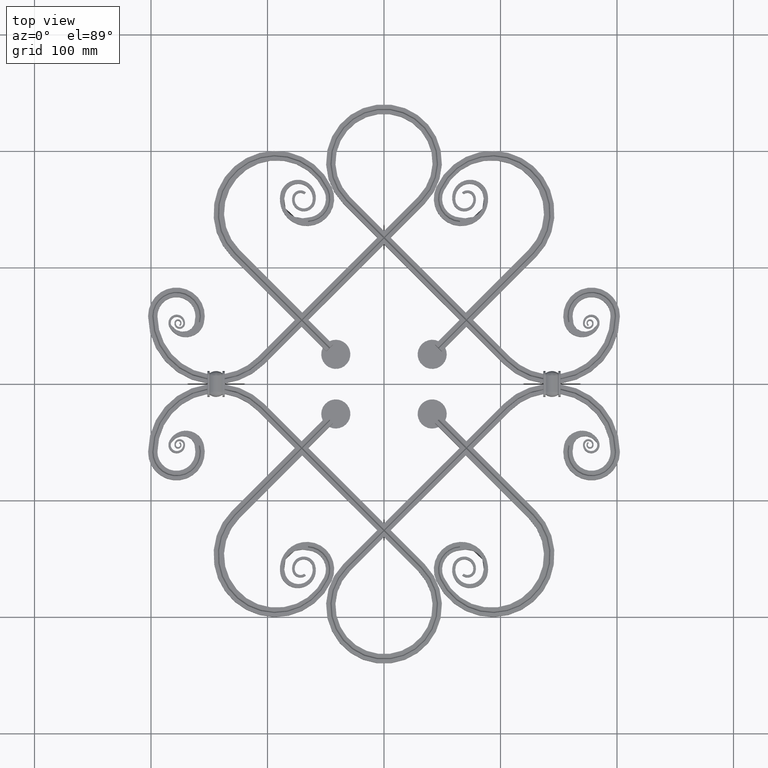
[diagram: clean part render]
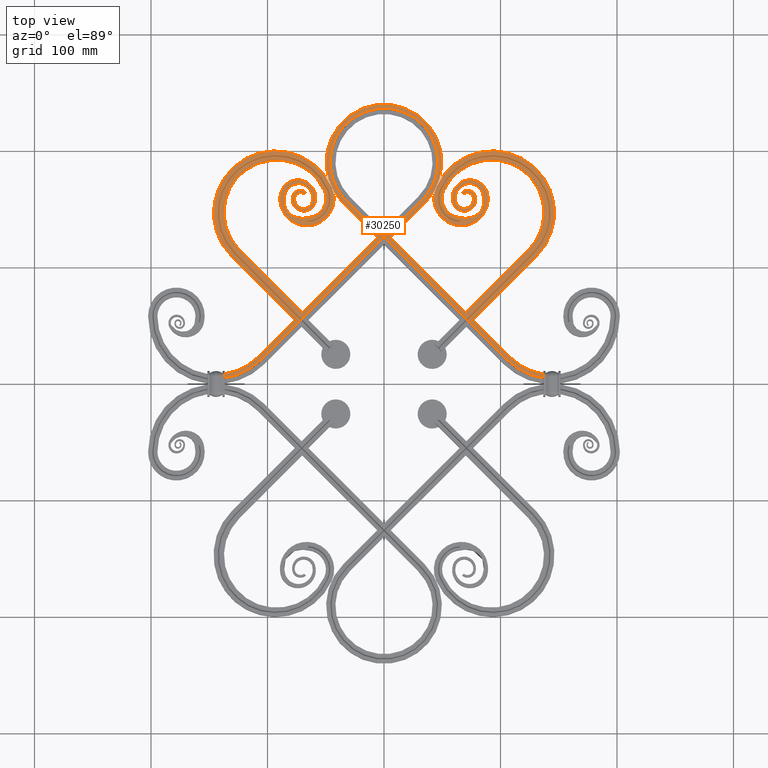
[diagram: same view with one face highlighted and labeled with its STEP entity id]
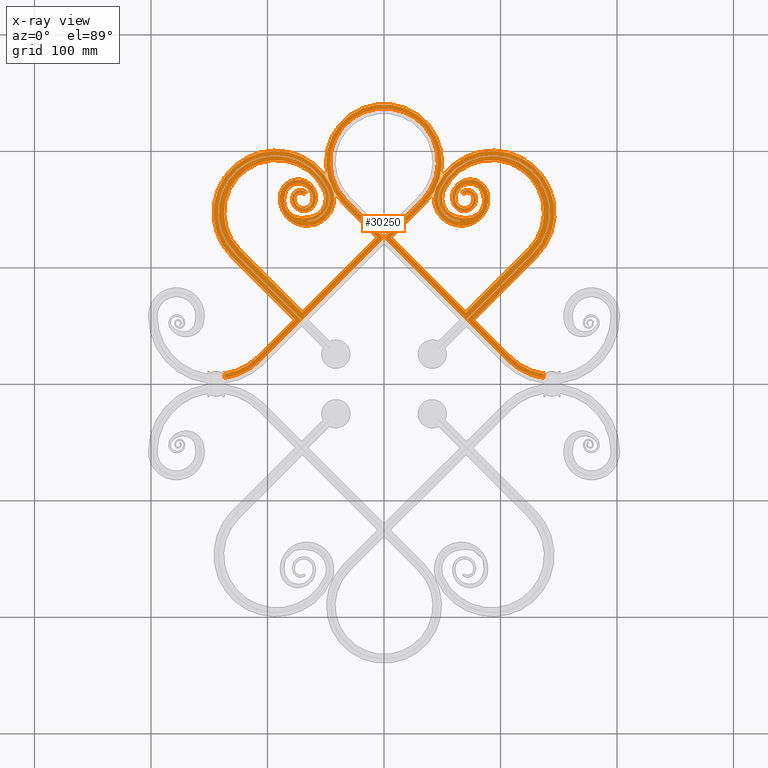
[diagram: x-ray of the same camera — body ghosted, the highlighted face saturated]
A machine part, top view. The second image highlights one B-rep face of the part: STEP entity #30250.
The next image is the same camera in x-ray: the body ghosted, the highlighted face saturated — about 0% of this face is hidden behind the body in this view.
In plain terms, the highlighted planar face has unit normal (-0, 0, -1).
Its self-contained STEP definition (entity closure, byte-faithful):
#44 = LINE ( 'NONE', #47434, #48711 ) ;
#79 = DIRECTION ( 'NONE',  ( 1.000000000000000000, 0.000000000000000000, 0.000000000000000000 ) ) ;
#291 = DIRECTION ( 'NONE',  ( -1.283298645648779388E-16, 1.000000000000000000, 0.000000000000000000 ) ) ;
#294 = CARTESIAN_POINT ( 'NONE',  ( -65.40307534832142267, 142.7633802260469622, 8.000000000000000000 ) ) ;
#361 = VERTEX_POINT ( 'NONE', #42119 ) ;
#393 = AXIS2_PLACEMENT_3D ( 'NONE', #50398, #4797, #28006 ) ;
#455 = CARTESIAN_POINT ( 'NONE',  ( 0.000000000000000000, 190.2943725152285595, 8.000000000000000000 ) ) ;
#497 = EDGE_CURVE ( 'NONE', #6529, #49911, #38418, .T. ) ;
#596 = CIRCLE ( 'NONE', #17380, 49.70562748477141923 ) ;
#630 = EDGE_CURVE ( 'NONE', #58753, #27859, #44825, .T. ) ;
#686 = CARTESIAN_POINT ( 'NONE',  ( 35.14718625761419446, 155.1471862576142087, 8.000000000000000000 ) ) ;
#698 = CIRCLE ( 'NONE', #37398, 48.53009624474128003 ) ;
#891 = CARTESIAN_POINT ( 'NONE',  ( 136.9099999999999682, 7.000000000000003553, 8.000000000000000000 ) ) ;
#957 = ORIENTED_EDGE ( 'NONE', *, *, #49466, .T. ) ;
#1069 = B_SPLINE_CURVE_WITH_KNOTS ( 'NONE', 3,
 ( #23165, #5549, #5172, #32418, #51004, #42000 ),
 .UNSPECIFIED., .F., .F.,
 ( 4, 2, 4 ),
 ( -6.324555320539929399E-06, 0.0003917635468966513342, 0.0007898516491138425893 ),
 .UNSPECIFIED. ) ;
#1100 = VERTEX_POINT ( 'NONE', #30830 ) ;
#1102 = DIRECTION ( 'NONE',  ( -0.000000000000000000, -0.000000000000000000, 1.000000000000000000 ) ) ;
#1130 = CARTESIAN_POINT ( 'NONE',  ( -83.82193969533972222, 165.8815472817085492, 8.000000000000000000 ) ) ;
#1172 = CIRCLE ( 'NONE', #19925, 18.90077836929150834 ) ;
#1435 = EDGE_CURVE ( 'NONE', #22516, #5520, #49184, .T. ) ;
#1714 = CARTESIAN_POINT ( 'NONE',  ( -61.40795490211693419, 157.0104392952450212, 8.000000000000000000 ) ) ;
#1778 = EDGE_CURVE ( 'NONE', #34240, #25053, #43000, .T. ) ;
#1787 = DIRECTION ( 'NONE',  ( 1.000000000000000000, 0.000000000000000000, 0.000000000000000000 ) ) ;
#1796 = CARTESIAN_POINT ( 'NONE',  ( -49.02186350812232973, 166.9599187458794063, 8.000000000000000000 ) ) ;
#1890 = CARTESIAN_POINT ( 'NONE',  ( -76.33735918495224837, 137.1471320015865274, 7.999999999999998224 ) ) ;
#1945 = DIRECTION ( 'NONE',  ( -0.7071067811865474617, 0.7071067811865475727, 0.000000000000000000 ) ) ;
#2057 = ORIENTED_EDGE ( 'NONE', *, *, #42418, .T. ) ;
#2065 = EDGE_CURVE ( 'NONE', #48169, #38269, #27656, .T. ) ;
#2174 = VERTEX_POINT ( 'NONE', #55582 ) ;
#2375 = DIRECTION ( 'NONE',  ( -0.7071067811865466846, -0.7071067811865483499, 0.000000000000000000 ) ) ;
#2376 = CIRCLE ( 'NONE', #28104, 53.75895917870027318 ) ;
#2393 = VECTOR ( 'NONE', #13390, 1000.000000000000000 ) ;
#2463 = VERTEX_POINT ( 'NONE', #48173 ) ;
#2477 = CARTESIAN_POINT ( 'NONE',  ( -65.04585675843233616, 135.6961866652618198, 8.000000000000003553 ) ) ;
#2517 = CARTESIAN_POINT ( 'NONE',  ( 70.65348797280974225, 174.9495985357238226, 8.000000000000000000 ) ) ;
#2635 = CARTESIAN_POINT ( 'NONE',  ( 70.88772585151116346, 148.3872215730026767, 8.000000000000003553 ) ) ;
#2641 = CARTESIAN_POINT ( 'NONE',  ( 136.8506574789937531, 7.118687415757402270, 8.000000000000000000 ) ) ;
#2860 = AXIS2_PLACEMENT_3D ( 'NONE', #455, #19228, #27677 ) ;
#3013 = EDGE_CURVE ( 'NONE', #15693, #31770, #43331, .T. ) ;
#3035 = CARTESIAN_POINT ( 'NONE',  ( 77.47098648825424050, 163.3268660464769937, 7.999999999999998224 ) ) ;
#3084 = CARTESIAN_POINT ( 'NONE',  ( 73.20506202850521049, 163.8926752992223044, 7.999999999999996447 ) ) ;
#3206 = ORIENTED_EDGE ( 'NONE', *, *, #41680, .T. ) ;
#3214 = DIRECTION ( 'NONE',  ( -0.000000000000000000, -0.000000000000000000, -1.000000000000000000 ) ) ;
#3234 = CARTESIAN_POINT ( 'NONE',  ( 76.32259622550991196, 164.5152128094649129, 8.000000000000001776 ) ) ;
#3464 = LINE ( 'NONE', #16824, #44306 ) ;
#3517 = CARTESIAN_POINT ( 'NONE',  ( 64.67367485908650337, 168.2299216932100592, 7.999999999999998224 ) ) ;
#3546 = CARTESIAN_POINT ( 'NONE',  ( -92.25499596866704621, 147.0254737730237480, 8.000000000000000000 ) ) ;
#3557 = VERTEX_POINT ( 'NONE', #32202 ) ;
#3572 = ORIENTED_EDGE ( 'NONE', *, *, #29322, .F. ) ;
#3706 = CARTESIAN_POINT ( 'NONE',  ( 73.81626376639248122, 171.9266195789292624, 8.000000000000000000 ) ) ;
#3829 = CARTESIAN_POINT ( 'NONE',  ( -64.58295577754495298, 149.1041452752517102, 8.000000000000001776 ) ) ;
#3832 = CIRCLE ( 'NONE', #28537, 49.68479678312053238 ) ;
#3855 = VERTEX_POINT ( 'NONE', #57721 ) ;
#3896 = EDGE_CURVE ( 'NONE', #361, #19182, #57649, .T. ) ;
#3919 = CARTESIAN_POINT ( 'NONE',  ( -65.04585675843233616, 135.6961866652618198, 8.000000000000003553 ) ) ;
#3939 = LINE ( 'NONE', #33267, #29048 ) ;
#3949 = CARTESIAN_POINT ( 'NONE',  ( -88.92358161771552716, 162.9174661462173503, 7.999999999999996447 ) ) ;
#4021 = CARTESIAN_POINT ( 'NONE',  ( 88.62416273990405102, 150.5072737004916803, 7.999999999999994671 ) ) ;
#4100 = VERTEX_POINT ( 'NONE', #35803 ) ;
#4127 = DIRECTION ( 'NONE',  ( -1.000000000000000000, 0.000000000000000000, 0.000000000000000000 ) ) ;
#4256 = EDGE_CURVE ( 'NONE', #5895, #39998, #47561, .T. ) ;
#4330 = CARTESIAN_POINT ( 'NONE',  ( 61.57923808470636828, 156.1542971245409888, 8.000000000000000000 ) ) ;
#4424 = ORIENTED_EDGE ( 'NONE', *, *, #16741, .F. ) ;
#4443 = EDGE_CURVE ( 'NONE', #57399, #11218, #11009, .T. ) ;
#4471 = CARTESIAN_POINT ( 'NONE',  ( 76.37336888828558301, 160.8849757678717367, 8.000000000000003553 ) ) ;
#4489 = VERTEX_POINT ( 'NONE', #19761 ) ;
#4497 = EDGE_CURVE ( 'NONE', #6411, #22883, #3832, .T. ) ;
#4523 = ORIENTED_EDGE ( 'NONE', *, *, #20962, .F. ) ;
#4673 = VECTOR ( 'NONE', #53411, 1000.000000000000000 ) ;
#4675 = CARTESIAN_POINT ( 'NONE',  ( 76.71517827283918223, 157.6021580543176128, 8.000000000000000000 ) ) ;
#4797 = DIRECTION ( 'NONE',  ( -0.000000000000000000, -0.000000000000000000, -1.000000000000000000 ) ) ;
#4866 = VERTEX_POINT ( 'NONE', #49182 ) ;
#4893 = CARTESIAN_POINT ( 'NONE',  ( -85.16251753524923629, 161.3455122756543005, 8.000000000000000000 ) ) ;
#5172 = CARTESIAN_POINT ( 'NONE',  ( -136.7909464999194711, 7.237632023364525935, 8.000000000000000000 ) ) ;
#5256 = CARTESIAN_POINT ( 'NONE',  ( 64.22295989562424268, 152.1467530779768254, 8.000000000000000000 ) ) ;
#5300 = CARTESIAN_POINT ( 'NONE',  ( 66.23106990780834735, 159.1443805009418213, 8.000000000000000000 ) ) ;
#5323 = CARTESIAN_POINT ( 'NONE',  ( -85.16251753524923629, 161.3455122756543005, 8.000000000000000000 ) ) ;
#5520 = VERTEX_POINT ( 'NONE', #26891 ) ;
#5549 = CARTESIAN_POINT ( 'NONE',  ( -136.8506574789937531, 7.118687415757366743, 8.000000000000000000 ) ) ;
#5575 = CARTESIAN_POINT ( 'NONE',  ( 93.20863860037366067, 146.8925534860690334, 8.000000000000000000 ) ) ;
#5851 = VERTEX_POINT ( 'NONE', #20752 ) ;
#5870 = CARTESIAN_POINT ( 'NONE',  ( -126.5480184911203736, 109.9670199223755134, 8.000000000000000000 ) ) ;
#5895 = VERTEX_POINT ( 'NONE', #38272 ) ;
#5943 = B_SPLINE_CURVE_WITH_KNOTS ( 'NONE', 3,
 ( #25111, #7315, #29944, #20691, #52764, #11518, #25499, #39366, #16072, #2517, #43942, #30145, #11911, #34561, #7104, #15678, #38575, #20293, #11723 ),
 .UNSPECIFIED., .F., .F.,
 ( 4, 1, 1, 1, 1, 1, 1, 1, 1, 1, 1, 1, 1, 1, 1, 1, 4 ),
 ( 0.000000000000000000, 0.06383429816466387741, 0.1277171492562035882, 0.1914096957831929458, 0.2549354454363764733, 0.3180963996616701372, 0.3811945017644106648, 0.4440337559067910056, 0.5065659025543285399, 0.5690481235759836665, 0.6311706137506309933, 0.6931238316418528722, 0.7549589443975200931, 0.8163846381574396682, 0.8777629106204584142, 0.9389134551431114195, 1.000000000000000000 ),
 .UNSPECIFIED. ) ;
#6070 = ORIENTED_EDGE ( 'NONE', *, *, #4256, .F. ) ;
#6102 = CARTESIAN_POINT ( 'NONE',  ( -73.81626376639252385, 171.9266195789292340, 8.000000000000000000 ) ) ;
#6411 = VERTEX_POINT ( 'NONE', #51000 ) ;
#6436 = LINE ( 'NONE', #56770, #58000 ) ;
#6502 = CARTESIAN_POINT ( 'NONE',  ( -64.67367485908653180, 168.2299216932100308, 7.999999999999998224 ) ) ;
#6529 = VERTEX_POINT ( 'NONE', #686 ) ;
#6663 = CARTESIAN_POINT ( 'NONE',  ( 35.14718625761420867, 155.1471862576142087, 8.000000000000000000 ) ) ;
#6739 = VECTOR ( 'NONE', #34172, 1000.000000000000114 ) ;
#6804 = AXIS2_PLACEMENT_3D ( 'NONE', #27282, #32107, #79 ) ;
#6837 = CARTESIAN_POINT ( 'NONE',  ( 136.7909464999194711, 7.237632023364559686, 8.000000000000000000 ) ) ;
#6902 = CARTESIAN_POINT ( 'NONE',  ( -66.65131538421370294, 169.8636759205212456, 7.999999999999998224 ) ) ;
#7032 = CARTESIAN_POINT ( 'NONE',  ( 136.6962667682590507, 7.485847165343210818, 8.000000000000000000 ) ) ;
#7076 = CARTESIAN_POINT ( 'NONE',  ( -89.12657620653534707, 161.8805252199850599, 8.000000000000000000 ) ) ;
#7104 = CARTESIAN_POINT ( 'NONE',  ( 85.20321424020582413, 170.3973043676169254, 7.999999999999998224 ) ) ;
#7245 = CARTESIAN_POINT ( 'NONE',  ( 136.6599999999999682, 7.750000000000015987, 8.000000000000000000 ) ) ;
#7309 = ORIENTED_EDGE ( 'NONE', *, *, #55586, .F. ) ;
#7315 = CARTESIAN_POINT ( 'NONE',  ( 58.94037377677766898, 156.4704374195733294, 8.000000000000000000 ) ) ;
#7370 = CARTESIAN_POINT ( 'NONE',  ( -71.20201243755437304, 164.1245498174919248, 8.000000000000001776 ) ) ;
#7406 = CARTESIAN_POINT ( 'NONE',  ( -93.20863860037370330, 146.8925534860690050, 8.000000000000000000 ) ) ;
#7475 = CARTESIAN_POINT ( 'NONE',  ( -67.13269671174722930, 164.4615957378543101, 8.000000000000000000 ) ) ;
#7561 = CARTESIAN_POINT ( 'NONE',  ( -73.44996935370591018, 151.9950943878272653, 8.000000000000003553 ) ) ;
#7606 = DIRECTION ( 'NONE',  ( -1.000000000000000000, 0.000000000000000000, 0.000000000000000000 ) ) ;
#7623 = CARTESIAN_POINT ( 'NONE',  ( 68.27033616319587850, 165.3256051063255825, 8.000000000000000000 ) ) ;
#7636 = CARTESIAN_POINT ( 'NONE',  ( -72.93689940155509532, 149.0488036248626713, 7.999999999999998224 ) ) ;
#7642 = VERTEX_POINT ( 'NONE', #9116 ) ;
#7677 = CARTESIAN_POINT ( 'NONE',  ( 75.73945652553676666, 162.0469508642554786, 7.999999999999998224 ) ) ;
#7767 = CARTESIAN_POINT ( 'NONE',  ( -76.70684246563614295, 159.2731764009965332, 7.999999999999998224 ) ) ;
#7782 = CARTESIAN_POINT ( 'NONE',  ( -136.6599999999999682, 58.33630944788990291, 8.000000000000000000 ) ) ;
#7847 = CARTESIAN_POINT ( 'NONE',  ( -136.6599999999999682, 7.749999999999981348, 8.000000000000000000 ) ) ;
#7920 = VECTOR ( 'NONE', #18344, 1000.000000000000114 ) ;
#7953 = CARTESIAN_POINT ( 'NONE',  ( -74.12433920337998927, 163.4889129485726755, 7.999999999999996447 ) ) ;
#8009 = CARTESIAN_POINT ( 'NONE',  ( 75.14394688720423687, 165.3354718061733308, 7.999999999999996447 ) ) ;
#8204 = CARTESIAN_POINT ( 'NONE',  ( 65.04585675843229353, 135.6961866652618482, 8.000000000000003553 ) ) ;
#8210 = CARTESIAN_POINT ( 'NONE',  ( -72.42581182493493941, 166.1737583830565939, 8.000000000000001776 ) ) ;
#8244 = DIRECTION ( 'NONE',  ( 0.7071067811865472397, 0.7071067811865479058, 0.000000000000000000 ) ) ;
#8254 = EDGE_CURVE ( 'NONE', #38703, #51146, #9348, .T. ) ;
#8532 = CARTESIAN_POINT ( 'NONE',  ( -68.43579084636128584, 162.9443793141577714, 8.000000000000000000 ) ) ;
#8647 = VERTEX_POINT ( 'NONE', #9849 ) ;
#8805 = VERTEX_POINT ( 'NONE', #15404 ) ;
#8847 = CARTESIAN_POINT ( 'NONE',  ( -70.16868942230217954, 61.14501907668253722, 8.000000000000000000 ) ) ;
#9116 = CARTESIAN_POINT ( 'NONE',  ( 136.9099999999999682, 5.068967996007882171, 8.000000000000000000 ) ) ;
#9145 = CARTESIAN_POINT ( 'NONE',  ( -66.23106990780838998, 159.1443805009417929, 8.000000000000000000 ) ) ;
#9348 = LINE ( 'NONE', #41888, #12224 ) ;
#9451 = CARTESIAN_POINT ( 'NONE',  ( 67.15966063433252486, 150.7554128987202091, 8.000000000000001776 ) ) ;
#9549 = CARTESIAN_POINT ( 'NONE',  ( -65.21863754216275311, 139.1144724901440384, 8.000000000000008882 ) ) ;
#9849 = CARTESIAN_POINT ( 'NONE',  ( -106.1503659673201696, 20.32298486310030938, 8.000000000000000000 ) ) ;
#10051 = LINE ( 'NONE', #58859, #17887 ) ;
#10218 = DIRECTION ( 'NONE',  ( 1.000000000000000000, 2.581483722868084778E-16, 0.000000000000000000 ) ) ;
#10239 = CARTESIAN_POINT ( 'NONE',  ( 108.5705448016028072, 22.74316369738250287, 8.000000000000000000 ) ) ;
#10360 = DIRECTION ( 'NONE',  ( 0.7071067811865493491, -0.7071067811865456854, 0.000000000000000000 ) ) ;
#10474 = DIRECTION ( 'NONE',  ( 0.6515470673070200558, -0.7586082118482646575, -0.000000000000000000 ) ) ;
#10488 = DIRECTION ( 'NONE',  ( -0.7071067811865474617, 0.7071067811865475727, 0.000000000000000000 ) ) ;
#10724 = CARTESIAN_POINT ( 'NONE',  ( -63.07299137445074422, 166.2195266058296568, 7.999999999999998224 ) ) ;
#10798 = LINE ( 'NONE', #31230, #7920 ) ;
#10822 = VERTEX_POINT ( 'NONE', #57143 ) ;
#10826 = AXIS2_PLACEMENT_3D ( 'NONE', #35040, #18173, #22777 ) ;
#10888 = CARTESIAN_POINT ( 'NONE',  ( -35.14718625761423709, 155.1471862576142087, 8.000000000000000000 ) ) ;
#10890 = VECTOR ( 'NONE', #20921, 1000.000000000000000 ) ;
#11009 = LINE ( 'NONE', #49634, #2393 ) ;
#11093 = EDGE_CURVE ( 'NONE', #2463, #51146, #3464, .T. ) ;
#11166 = VECTOR ( 'NONE', #30100, 1000.000000000000000 ) ;
#11179 = CARTESIAN_POINT ( 'NONE',  ( -144.1636905521100971, 58.33630944788988160, 8.000000000000000000 ) ) ;
#11218 = VERTEX_POINT ( 'NONE', #27230 ) ;
#11269 = DIRECTION ( 'NONE',  ( -1.000000000000000000, 0.000000000000000000, 0.000000000000000000 ) ) ;
#11344 = DIRECTION ( 'NONE',  ( 0.7071067811865469066, -0.7071067811865482389, 0.000000000000000000 ) ) ;
#11384 = CARTESIAN_POINT ( 'NONE',  ( -5.656854249492391240, 125.6568542494924969, 8.000000000000000000 ) ) ;
#11518 = CARTESIAN_POINT ( 'NONE',  ( 60.58674508727070673, 167.7031625758518487, 7.999999999999998224 ) ) ;
#11723 = CARTESIAN_POINT ( 'NONE',  ( 89.12657620653530444, 161.8805252199850884, 8.000000000000000000 ) ) ;
#11911 = CARTESIAN_POINT ( 'NONE',  ( 80.01640621750452453, 174.0324482129682053, 8.000000000000000000 ) ) ;
#12032 = CARTESIAN_POINT ( 'NONE',  ( 76.38828489963677271, 151.5679356940122773, 7.999999999999996447 ) ) ;
#12040 = CARTESIAN_POINT ( 'NONE',  ( -70.71067811865491137, 55.76267271176546103, 8.000000000000000000 ) ) ;
#12136 = CARTESIAN_POINT ( 'NONE',  ( 123.1578851740683689, 3.315465656352174495, 8.000000000000000000 ) ) ;
#12164 = CARTESIAN_POINT ( 'NONE',  ( -76.37336888828562564, 160.8849757678717083, 8.000000000000003553 ) ) ;
#12224 = VECTOR ( 'NONE', #19831, 1000.000000000000000 ) ;
#12267 = CARTESIAN_POINT ( 'NONE',  ( 72.00229150767059139, 151.1831229509091941, 8.000000000000000000 ) ) ;
#12363 = CARTESIAN_POINT ( 'NONE',  ( -74.69073930774344205, 153.0941470498954686, 7.999999999999998224 ) ) ;
#12419 = CARTESIAN_POINT ( 'NONE',  ( 78.91748307031468812, 157.3895729139238711, 8.000000000000000000 ) ) ;
#12698 = CARTESIAN_POINT ( 'NONE',  ( 84.79678963289902072, 163.6934149499362547, 7.999999999999996447 ) ) ;
#12795 = EDGE_CURVE ( 'NONE', #53310, #35166, #40020, .T. ) ;
#12806 = CARTESIAN_POINT ( 'NONE',  ( -70.88772585151120609, 148.3872215730026483, 8.000000000000003553 ) ) ;
#12852 = CARTESIAN_POINT ( 'NONE',  ( 44.85417453748589622, 168.8526691601938694, 8.000000000000000000 ) ) ;
#12977 = PLANE ( 'NONE',  #32249 ) ;
#13059 = CARTESIAN_POINT ( 'NONE',  ( 89.12657620653530444, 161.8805252199850884, 8.000000000000000000 ) ) ;
#13078 = CARTESIAN_POINT ( 'NONE',  ( 61.90427792352705438, 163.8901458023455291, 8.000000000000001776 ) ) ;
#13111 = DIRECTION ( 'NONE',  ( -0.000000000000000000, -0.000000000000000000, -1.000000000000000000 ) ) ;
#13122 = CARTESIAN_POINT ( 'NONE',  ( -58.94037377677771161, 156.4704374195733010, 8.000000000000000000 ) ) ;
#13276 = VECTOR ( 'NONE', #10474, 1000.000000000000000 ) ;
#13358 = DIRECTION ( 'NONE',  ( -1.000000000000000000, 0.000000000000000000, 0.000000000000000000 ) ) ;
#13390 = DIRECTION ( 'NONE',  ( 0.05048158512230623701, 0.9987249919590174274, 0.000000000000000000 ) ) ;
#13496 = CARTESIAN_POINT ( 'NONE',  ( -123.1578851740683689, 3.315465656352142965, 8.000000000000000000 ) ) ;
#13507 = CARTESIAN_POINT ( 'NONE',  ( -58.45434100670368593, 158.5310447711346740, 7.999999999999996447 ) ) ;
#13648 = CARTESIAN_POINT ( 'NONE',  ( 69.25428704862895302, 163.5467730859071196, 8.000000000000000000 ) ) ;
#13687 = EDGE_CURVE ( 'NONE', #57399, #6411, #35689, .T. ) ;
#13833 = CIRCLE ( 'NONE', #34437, 23.47812863848129794 ) ;
#14087 = CARTESIAN_POINT ( 'NONE',  ( -127.5245987466660580, 112.5765933397766219, 8.000000000000000000 ) ) ;
#14139 = CARTESIAN_POINT ( 'NONE',  ( 86.25569387270343213, 157.6480605572066622, 8.000000000000000000 ) ) ;
#14265 = CARTESIAN_POINT ( 'NONE',  ( 130.7612741618762016, 109.3399179245664925, 8.000000000000000000 ) ) ;
#14286 = ORIENTED_EDGE ( 'NONE', *, *, #3896, .F. ) ;
#14316 = LINE ( 'NONE', #52725, #43711 ) ;
#14415 = VERTEX_POINT ( 'NONE', #41247 ) ;
#14651 = VERTEX_POINT ( 'NONE', #9549 ) ;
#14761 = CARTESIAN_POINT ( 'NONE',  ( 49.02186350812228710, 166.9599187458794063, 8.000000000000000000 ) ) ;
#14982 = AXIS2_PLACEMENT_3D ( 'NONE', #34333, #25075, #38344 ) ;
#14987 = AXIS2_PLACEMENT_3D ( 'NONE', #3546, #13111, #4127 ) ;
#15132 = EDGE_CURVE ( 'NONE', #1100, #48169, #24797, .T. ) ;
#15168 = LINE ( 'NONE', #38084, #42460 ) ;
#15272 = CARTESIAN_POINT ( 'NONE',  ( -61.57923808470641092, 156.1542971245409603, 8.000000000000000000 ) ) ;
#15358 = EDGE_CURVE ( 'NONE', #15817, #7642, #48410, .T. ) ;
#15404 = CARTESIAN_POINT ( 'NONE',  ( 51.36233454743773308, 166.0685016567210539, 8.000000000000000000 ) ) ;
#15540 = DIRECTION ( 'NONE',  ( 0.000000000000000000, 0.000000000000000000, -1.000000000000000000 ) ) ;
#15678 = CARTESIAN_POINT ( 'NONE',  ( 87.10685996883742632, 167.8640401468794607, 8.000000000000000000 ) ) ;
#15693 = VERTEX_POINT ( 'NONE', #36806 ) ;
#15709 = CARTESIAN_POINT ( 'NONE',  ( 5.656854249492359266, 125.6568542494924969, 8.000000000000000000 ) ) ;
#15754 = VERTEX_POINT ( 'NONE', #27006 ) ;
#15817 = VERTEX_POINT ( 'NONE', #47749 ) ;
#16072 = CARTESIAN_POINT ( 'NONE',  ( 67.61698477114602213, 173.9661606775789267, 8.000000000000000000 ) ) ;
#16245 = ORIENTED_EDGE ( 'NONE', *, *, #22805, .F. ) ;
#16381 = VERTEX_POINT ( 'NONE', #23240 ) ;
#16394 = CIRCLE ( 'NONE', #6804, 48.53009624474129424 ) ;
#16601 = CARTESIAN_POINT ( 'NONE',  ( 78.87680985348789875, 159.5253732520419305, 7.999999999999996447 ) ) ;
#16700 = LINE ( 'NONE', #42184, #34677 ) ;
#16741 = EDGE_CURVE ( 'NONE', #39773, #20586, #32656, .T. ) ;
#16751 = VERTEX_POINT ( 'NONE', #50610 ) ;
#16824 = CARTESIAN_POINT ( 'NONE',  ( 125.7315219101926260, 110.7835165033032467, 8.000000000000000000 ) ) ;
#17047 = CARTESIAN_POINT ( 'NONE',  ( 72.21226532317258773, 164.1085212778376672, 8.000000000000001776 ) ) ;
#17071 = DIRECTION ( 'NONE',  ( -0.000000000000000000, -0.000000000000000000, 1.000000000000000000 ) ) ;
#17202 = CARTESIAN_POINT ( 'NONE',  ( 69.62333700237245182, 135.4648132036575987, 8.000000000000000000 ) ) ;
#17332 = CARTESIAN_POINT ( 'NONE',  ( -64.86334790552224661, 172.3749685334297226, 7.999999999999998224 ) ) ;
#17335 = CARTESIAN_POINT ( 'NONE',  ( -67.15966063433256750, 150.7554128987201807, 8.000000000000001776 ) ) ;
#17366 = ORIENTED_EDGE ( 'NONE', *, *, #40553, .T. ) ;
#17380 = AXIS2_PLACEMENT_3D ( 'NONE', #23726, #55739, #42169 ) ;
#17409 = CARTESIAN_POINT ( 'NONE',  ( -73.82139607426297800, 165.8915645942687433, 7.999999999999996447 ) ) ;
#17424 = ORIENTED_EDGE ( 'NONE', *, *, #3013, .T. ) ;
#17540 = CARTESIAN_POINT ( 'NONE',  ( -65.40307534832142267, 142.7633802260469622, 8.000000000000000000 ) ) ;
#17784 = CARTESIAN_POINT ( 'NONE',  ( 83.48186661731470792, 142.9065248525154175, 8.000000000000001776 ) ) ;
#17887 = VECTOR ( 'NONE', #8244, 999.9999999999998863 ) ;
#18046 = CARTESIAN_POINT ( 'NONE',  ( 70.42850965858927736, 150.6955924533531288, 8.000000000000005329 ) ) ;
#18106 = CARTESIAN_POINT ( 'NONE',  ( -80.01640621750456717, 174.0324482129681769, 8.000000000000000000 ) ) ;
#18173 = DIRECTION ( 'NONE',  ( 0.000000000000000000, 0.000000000000000000, 1.000000000000000000 ) ) ;
#18344 = DIRECTION ( 'NONE',  ( -0.05048158512230648681, 0.9987249919590173164, -0.000000000000000000 ) ) ;
#18467 = EDGE_CURVE ( 'NONE', #3855, #26992, #35357, .T. ) ;
#18667 = CARTESIAN_POINT ( 'NONE',  ( -86.25569387270347477, 157.6480605572066622, 8.000000000000000000 ) ) ;
#18676 = AXIS2_PLACEMENT_3D ( 'NONE', #41588, #50378, #18732 ) ;
#18732 = DIRECTION ( 'NONE',  ( 1.000000000000000000, 0.000000000000000000, 0.000000000000000000 ) ) ;
#18749 = DIRECTION ( 'NONE',  ( -1.000000000000000000, 0.000000000000000000, 0.000000000000000000 ) ) ;
#18800 = ORIENTED_EDGE ( 'NONE', *, *, #51222, .T. ) ;
#19098 = CARTESIAN_POINT ( 'NONE',  ( -85.04065079392377413, 162.1278732768940642, 7.999999999999996447 ) ) ;
#19182 = VERTEX_POINT ( 'NONE', #4330 ) ;
#19228 = DIRECTION ( 'NONE',  ( -0.000000000000000000, -0.000000000000000000, -1.000000000000000000 ) ) ;
#19231 = CARTESIAN_POINT ( 'NONE',  ( 65.61237454276867709, 151.2995130039726916, 8.000000000000003553 ) ) ;
#19446 = CARTESIAN_POINT ( 'NONE',  ( 68.43579084636124321, 162.9443793141577999, 8.000000000000000000 ) ) ;
#19508 = ORIENTED_EDGE ( 'NONE', *, *, #37325, .T. ) ;
#19565 = VECTOR ( 'NONE', #35596, 1000.000000000000000 ) ;
#19592 = CARTESIAN_POINT ( 'NONE',  ( 144.1636905521100687, 58.33630944788991712, 8.000000000000000000 ) ) ;
#19661 = DIRECTION ( 'NONE',  ( -0.7071067811865491270, -0.7071067811865459074, 0.000000000000000000 ) ) ;
#19668 = CARTESIAN_POINT ( 'NONE',  ( 128.3410953275937345, 111.7600967588489311, 8.000000000000000000 ) ) ;
#19675 = VERTEX_POINT ( 'NONE', #7475 ) ;
#19742 = EDGE_CURVE ( 'NONE', #31770, #19182, #21516, .T. ) ;
#19761 = CARTESIAN_POINT ( 'NONE',  ( 70.16868942230216533, 61.14501907668255853, 8.000000000000000000 ) ) ;
#19762 = ORIENTED_EDGE ( 'NONE', *, *, #13687, .T. ) ;
#19831 = DIRECTION ( 'NONE',  ( 0.7071067811865485719, -0.7071067811865465735, 0.000000000000000000 ) ) ;
#19925 = AXIS2_PLACEMENT_3D ( 'NONE', #9145, #55162, #31999 ) ;
#20191 = AXIS2_PLACEMENT_3D ( 'NONE', #31608, #36199, #40809 ) ;
#20284 = CARTESIAN_POINT ( 'NONE',  ( -61.90427792352709702, 163.8901458023455007, 8.000000000000001776 ) ) ;
#20293 = CARTESIAN_POINT ( 'NONE',  ( 88.92358161771548453, 162.9174661462173788, 7.999999999999996447 ) ) ;
#20347 = DIRECTION ( 'NONE',  ( -1.000000000000000000, 0.000000000000000000, 0.000000000000000000 ) ) ;
#20570 = B_SPLINE_CURVE_WITH_KNOTS ( 'NONE', 3,
 ( #34293, #2641, #6837, #7032, #39090, #48251 ),
 .UNSPECIFIED., .F., .F.,
 ( 4, 2, 4 ),
 ( -6.324555320539929399E-06, 0.0003917635468966509005, 0.0007898516491138417219 ),
 .UNSPECIFIED. ) ;
#20586 = VERTEX_POINT ( 'NONE', #14265 ) ;
#20657 = CARTESIAN_POINT ( 'NONE',  ( -108.5705448016028072, 22.74316369738247445, 8.000000000000000000 ) ) ;
#20691 = CARTESIAN_POINT ( 'NONE',  ( 58.55238405487963149, 161.7167424432083749, 8.000000000000001776 ) ) ;
#20752 = CARTESIAN_POINT ( 'NONE',  ( 32.72700742333183399, 157.5673650918965052, 8.000000000000000000 ) ) ;
#20921 = DIRECTION ( 'NONE',  ( 0.7071067811865485719, -0.7071067811865465735, 0.000000000000000000 ) ) ;
#20962 = EDGE_CURVE ( 'NONE', #36590, #8805, #54515, .T. ) ;
#20976 = DIRECTION ( 'NONE',  ( -0.7071067811865483499, -0.7071067811865465735, 0.000000000000000000 ) ) ;
#20980 = VERTEX_POINT ( 'NONE', #49860 ) ;
#21126 = LINE ( 'NONE', #34806, #4673 ) ;
#21210 = CARTESIAN_POINT ( 'NONE',  ( 72.93689940155505269, 149.0488036248626997, 7.999999999999998224 ) ) ;
#21360 = CARTESIAN_POINT ( 'NONE',  ( -68.70849354933477571, 163.1450820289111618, 8.000000000000000000 ) ) ;
#21516 = B_SPLINE_CURVE_WITH_KNOTS ( 'NONE', 3,
 ( #30714, #44515, #13648, #22851, #25880, #17047, #3084, #35117, #27485, #7677, #4471, #26283, #4675, #54893, #32111, #58274, #39746, #12267, #18046, #50081, #9451, #19231, #5256, #37093, #50684, #37499, #50485 ),
 .UNSPECIFIED., .F., .F.,
 ( 4, 1, 1, 1, 1, 1, 1, 1, 1, 1, 1, 1, 1, 1, 1, 1, 1, 1, 1, 1, 1, 1, 1, 1, 4 ),
 ( 0.000000000000000000, 0.03061191559738551948, 0.06126739614905762910, 0.09178133022085011028, 0.1222595640102591696, 0.1528115300356805983, 0.1832126092671853002, 0.2135733528073366916, 0.2440105826190649418, 0.2892466122839463250, 0.3364232543075206250, 0.3841847167188038314, 0.4319289119490197226, 0.4795505784264774141, 0.5271731330765523360, 0.5746721168089542475, 0.6221730659427380239, 0.6695493821903600873, 0.7169287258262677653, 0.7641823794175224283, 0.8114401137903952677, 0.8585711089664845863, 0.9057072520144028305, 0.9525392775003195256, 1.000000000000000000 ),
 .UNSPECIFIED. ) ;
#21621 = CARTESIAN_POINT ( 'NONE',  ( 72.42581182493491099, 166.1737583830566223, 8.000000000000001776 ) ) ;
#21826 = CARTESIAN_POINT ( 'NONE',  ( -68.75385198882774773, 148.1757999088162592, 7.999999999999994671 ) ) ;
#21958 = CARTESIAN_POINT ( 'NONE',  ( -64.22295989562428531, 152.1467530779767969, 8.000000000000000000 ) ) ;
#22065 = VECTOR ( 'NONE', #20976, 1000.000000000000114 ) ;
#22296 = CARTESIAN_POINT ( 'NONE',  ( 80.68508525459813541, 169.5058437029270806, 7.999999999999998224 ) ) ;
#22490 = ORIENTED_EDGE ( 'NONE', *, *, #25681, .T. ) ;
#22516 = VERTEX_POINT ( 'NONE', #43784 ) ;
#22526 = CARTESIAN_POINT ( 'NONE',  ( -76.98012606458185303, 174.9918036445392602, 8.000000000000000000 ) ) ;
#22777 = DIRECTION ( 'NONE',  ( -1.000000000000000000, 0.000000000000000000, 0.000000000000000000 ) ) ;
#22805 = EDGE_CURVE ( 'NONE', #26992, #27859, #31610, .T. ) ;
#22819 = ORIENTED_EDGE ( 'NONE', *, *, #49490, .T. ) ;
#22851 = CARTESIAN_POINT ( 'NONE',  ( 70.20930399366557140, 163.9286986373489583, 8.000000000000000000 ) ) ;
#22883 = VERTEX_POINT ( 'NONE', #19668 ) ;
#22942 = ORIENTED_EDGE ( 'NONE', *, *, #45760, .F. ) ;
#23165 = CARTESIAN_POINT ( 'NONE',  ( -136.9099999999999682, 6.999999999999968026, 8.000000000000000000 ) ) ;
#23240 = CARTESIAN_POINT ( 'NONE',  ( -61.57923808470641092, 156.1542971245409603, 8.000000000000000000 ) ) ;
#23329 = ORIENTED_EDGE ( 'NONE', *, *, #33997, .F. ) ;
#23726 = CARTESIAN_POINT ( 'NONE',  ( 0.000000000000000000, 190.2943725152285595, 8.000000000000000000 ) ) ;
#23868 = ORIENTED_EDGE ( 'NONE', *, *, #47889, .T. ) ;
#23942 = DIRECTION ( 'NONE',  ( 2.566597291297558776E-16, -1.000000000000000000, -4.956352788505173129E-16 ) ) ;
#23950 = CARTESIAN_POINT ( 'NONE',  ( -35.14718625761425130, 155.1471862576142087, 8.000000000000000000 ) ) ;
#23961 = EDGE_CURVE ( 'NONE', #14651, #20980, #10798, .T. ) ;
#23999 = LINE ( 'NONE', #11384, #52693 ) ;
#24009 = CIRCLE ( 'NONE', #37051, 50.33630944788986028 ) ;
#24278 = EDGE_CURVE ( 'NONE', #49911, #4489, #53081, .T. ) ;
#24309 = VERTEX_POINT ( 'NONE', #47551 ) ;
#24363 = ORIENTED_EDGE ( 'NONE', *, *, #1778, .F. ) ;
#24367 = CARTESIAN_POINT ( 'NONE',  ( 70.71067811865489716, 55.76267271176548235, 8.000000000000000000 ) ) ;
#24402 = CIRCLE ( 'NONE', #20191, 16.40191284566058627 ) ;
#24724 = ORIENTED_EDGE ( 'NONE', *, *, #12795, .F. ) ;
#24729 = EDGE_CURVE ( 'NONE', #48642, #16751, #48062, .T. ) ;
#24781 = CARTESIAN_POINT ( 'NONE',  ( 59.18329777675251080, 155.4405254238397163, 8.000000000000000000 ) ) ;
#24797 = LINE ( 'NONE', #30162, #55562 ) ;
#24923 = DIRECTION ( 'NONE',  ( 1.000000000000000000, 0.000000000000000000, 0.000000000000000000 ) ) ;
#24926 = LINE ( 'NONE', #57592, #22065 ) ;
#24964 = ORIENTED_EDGE ( 'NONE', *, *, #19742, .T. ) ;
#25053 = VERTEX_POINT ( 'NONE', #30506 ) ;
#25071 = CARTESIAN_POINT ( 'NONE',  ( -83.48186661731473635, 142.9065248525153891, 8.000000000000001776 ) ) ;
#25075 = DIRECTION ( 'NONE',  ( 0.000000000000000000, 0.000000000000000000, 1.000000000000000000 ) ) ;
#25111 = CARTESIAN_POINT ( 'NONE',  ( 59.18329777675251080, 155.4405254238397163, 8.000000000000000000 ) ) ;
#25362 = ORIENTED_EDGE ( 'NONE', *, *, #11093, .F. ) ;
#25499 = CARTESIAN_POINT ( 'NONE',  ( 62.48657422517756999, 170.2692211336271555, 7.999999999999998224 ) ) ;
#25681 = EDGE_CURVE ( 'NONE', #5520, #48642, #24402, .T. ) ;
#25691 = CARTESIAN_POINT ( 'NONE',  ( 144.1636905521100687, 58.33630944788991712, 8.000000000000000000 ) ) ;
#25762 = CARTESIAN_POINT ( 'NONE',  ( -73.20506202850525312, 163.8926752992222760, 7.999999999999996447 ) ) ;
#25784 = EDGE_CURVE ( 'NONE', #39839, #22516, #6436, .T. ) ;
#25798 = AXIS2_PLACEMENT_3D ( 'NONE', #49678, #31698, #40899 ) ;
#25880 = CARTESIAN_POINT ( 'NONE',  ( 71.20201243755433040, 164.1245498174919533, 8.000000000000001776 ) ) ;
#25973 = CARTESIAN_POINT ( 'NONE',  ( -68.78469601165812719, 150.5528423461545628, 7.999999999999996447 ) ) ;
#26016 = ORIENTED_EDGE ( 'NONE', *, *, #32132, .T. ) ;
#26046 = CARTESIAN_POINT ( 'NONE',  ( -77.47098648825426892, 163.3268660464769653, 7.999999999999998224 ) ) ;
#26070 = CARTESIAN_POINT ( 'NONE',  ( 59.18329777675251080, 155.4405254238397163, 8.000000000000000000 ) ) ;
#26178 = CARTESIAN_POINT ( 'NONE',  ( -76.71517827283922486, 157.6021580543175844, 8.000000000000000000 ) ) ;
#26244 = CARTESIAN_POINT ( 'NONE',  ( -66.61377614329147434, 148.4175551274734346, 8.000000000000000000 ) ) ;
#26283 = CARTESIAN_POINT ( 'NONE',  ( 76.70684246563610031, 159.2731764009965616, 7.999999999999998224 ) ) ;
#26376 = CARTESIAN_POINT ( 'NONE',  ( -63.04771912417108126, 153.2769507465378638, 8.000000000000007105 ) ) ;
#26445 = CARTESIAN_POINT ( 'NONE',  ( -59.18329777675255343, 155.4405254238396878, 8.000000000000000000 ) ) ;
#26449 = EDGE_CURVE ( 'NONE', #2463, #42718, #16394, .T. ) ;
#26520 = CARTESIAN_POINT ( 'NONE',  ( 78.58935699175810896, 170.7764346860229807, 8.000000000000000000 ) ) ;
#26554 = DIRECTION ( 'NONE',  ( -0.000000000000000000, -0.000000000000000000, -1.000000000000000000 ) ) ;
#26810 = DIRECTION ( 'NONE',  ( -0.000000000000000000, 0.000000000000000000, -1.000000000000000000 ) ) ;
#26891 = CARTESIAN_POINT ( 'NONE',  ( -51.36233454743777571, 166.0685016567210539, 8.000000000000000000 ) ) ;
#26992 = VERTEX_POINT ( 'NONE', #41619 ) ;
#27006 = CARTESIAN_POINT ( 'NONE',  ( -71.52717469958263052, 54.94617613083775609, 8.000000000000003553 ) ) ;
#27096 = CARTESIAN_POINT ( 'NONE',  ( 62.73038706850794455, 150.2071307248412779, 7.999999999999998224 ) ) ;
#27159 = CARTESIAN_POINT ( 'NONE',  ( 65.40307534832138003, 142.7633802260469906, 8.000000000000000000 ) ) ;
#27230 = CARTESIAN_POINT ( 'NONE',  ( 65.27692865568101865, 140.2677007760519814, 8.000000000000000000 ) ) ;
#27252 = ORIENTED_EDGE ( 'NONE', *, *, #48960, .F. ) ;
#27282 = CARTESIAN_POINT ( 'NONE',  ( 93.20863860037366067, 146.8925534860690334, 8.000000000000000000 ) ) ;
#27485 = CARTESIAN_POINT ( 'NONE',  ( 74.93730437928563504, 162.9075408545892287, 8.000000000000001776 ) ) ;
#27621 = CARTESIAN_POINT ( 'NONE',  ( 68.43579084636124321, 162.9443793141577999, 8.000000000000000000 ) ) ;
#27656 = LINE ( 'NONE', #54430, #51263 ) ;
#27677 = DIRECTION ( 'NONE',  ( -1.000000000000000000, 0.000000000000000000, 0.000000000000000000 ) ) ;
#27840 = ORIENTED_EDGE ( 'NONE', *, *, #38329, .F. ) ;
#27857 = VERTEX_POINT ( 'NONE', #34688 ) ;
#27859 = VERTEX_POINT ( 'NONE', #12040 ) ;
#27916 = EDGE_CURVE ( 'NONE', #4866, #19675, #42463, .T. ) ;
#28006 = DIRECTION ( 'NONE',  ( 1.000000000000000000, 0.000000000000000000, 0.000000000000000000 ) ) ;
#28052 = VERTEX_POINT ( 'NONE', #891 ) ;
#28104 = AXIS2_PLACEMENT_3D ( 'NONE', #11179, #29616, #20347 ) ;
#28510 = DIRECTION ( 'NONE',  ( 1.000000000000000000, 0.000000000000000000, 0.000000000000000000 ) ) ;
#28537 = AXIS2_PLACEMENT_3D ( 'NONE', #5575, #15540, #42626 ) ;
#28741 = ORIENTED_EDGE ( 'NONE', *, *, #15132, .T. ) ;
#29048 = VECTOR ( 'NONE', #32661, 999.9999999999998863 ) ;
#29082 = ORIENTED_EDGE ( 'NONE', *, *, #8254, .T. ) ;
#29088 = B_SPLINE_CURVE_WITH_KNOTS ( 'NONE', 3,
 ( #32427, #45985, #37214, #37415, #36820, #14139, #55384 ),
 .UNSPECIFIED., .F., .F.,
 ( 4, 1, 1, 1, 4 ),
 ( 0.000000000000000000, 0.3333333333333332593, 0.4999999999999996669, 0.6666666666666665186, 1.000000000000000000 ),
 .UNSPECIFIED. ) ;
#29203 = ORIENTED_EDGE ( 'NONE', *, *, #24278, .F. ) ;
#29322 = EDGE_CURVE ( 'NONE', #2174, #39773, #52804, .T. ) ;
#29514 = EDGE_CURVE ( 'NONE', #8805, #40780, #34214, .T. ) ;
#29616 = DIRECTION ( 'NONE',  ( -0.000000000000000000, -0.000000000000000000, -1.000000000000000000 ) ) ;
#29847 = FACE_OUTER_BOUND ( 'NONE', #57098, .T. ) ;
#29944 = CARTESIAN_POINT ( 'NONE',  ( 58.45434100670364330, 158.5310447711347024, 7.999999999999996447 ) ) ;
#30100 = DIRECTION ( 'NONE',  ( 0.7071067811865474617, -0.7071067811865475727, 0.000000000000000000 ) ) ;
#30145 = CARTESIAN_POINT ( 'NONE',  ( 76.98012606458181040, 174.9918036445392886, 8.000000000000000000 ) ) ;
#30162 = CARTESIAN_POINT ( 'NONE',  ( -76.36753236814736567, 54.94617613083780583, 8.000000000000000000 ) ) ;
#30250 = ADVANCED_FACE ( 'NONE', ( #29847 ), #12977, .F. ) ;
#30378 = EDGE_CURVE ( 'NONE', #2174, #45909, #35242, .T. ) ;
#30407 = CARTESIAN_POINT ( 'NONE',  ( -74.93730437928567767, 162.9075408545892003, 8.000000000000001776 ) ) ;
#30465 = CARTESIAN_POINT ( 'NONE',  ( 66.61377614329143171, 148.4175551274734630, 8.000000000000000000 ) ) ;
#30506 = CARTESIAN_POINT ( 'NONE',  ( -89.12657620653534707, 161.8805252199850599, 8.000000000000000000 ) ) ;
#30612 = CARTESIAN_POINT ( 'NONE',  ( -75.73945652553680929, 162.0469508642554501, 7.999999999999998224 ) ) ;
#30675 = CARTESIAN_POINT ( 'NONE',  ( -70.99017390698301710, 166.1755479092256564, 8.000000000000001776 ) ) ;
#30714 = CARTESIAN_POINT ( 'NONE',  ( 68.43579084636124321, 162.9443793141577999, 8.000000000000000000 ) ) ;
#30792 = ORIENTED_EDGE ( 'NONE', *, *, #58605, .F. ) ;
#30799 = CARTESIAN_POINT ( 'NONE',  ( -61.76242164235313936, 155.6323697923744760, 7.999999999999998224 ) ) ;
#30820 = EDGE_CURVE ( 'NONE', #48344, #20980, #1172, .T. ) ;
#30830 = CARTESIAN_POINT ( 'NONE',  ( -130.7612741618762300, 109.3399179245664641, 8.000000000000000000 ) ) ;
#30989 = ORIENTED_EDGE ( 'NONE', *, *, #27916, .F. ) ;
#31000 = CARTESIAN_POINT ( 'NONE',  ( -73.80535988986819973, 175.2931122288875940, 8.000000000000000000 ) ) ;
#31076 = CARTESIAN_POINT ( 'NONE',  ( -59.90691311051760692, 153.4460312435988385, 7.999999999999996447 ) ) ;
#31148 = CARTESIAN_POINT ( 'NONE',  ( 71.31327538642021580, 171.7440160135432166, 8.000000000000000000 ) ) ;
#31190 = CARTESIAN_POINT ( 'NONE',  ( -89.12657620653534707, 161.8805252199850599, 8.000000000000000000 ) ) ;
#31195 = CARTESIAN_POINT ( 'NONE',  ( -68.43579084636128584, 162.9443793141577714, 8.000000000000000000 ) ) ;
#31206 = CARTESIAN_POINT ( 'NONE',  ( 5.656854249492359266, 125.6568542494924969, 8.000000000000000000 ) ) ;
#31230 = CARTESIAN_POINT ( 'NONE',  ( -65.40307534832143688, 142.7633802260469906, 8.000000000000000000 ) ) ;
#31369 = B_SPLINE_CURVE_WITH_KNOTS ( 'NONE', 3,
 ( #26070, #58457, #58688, #58886, #27096, #40081, #30465, #49044, #2635, #21210, #48243, #12032, #39884, #48641, #12419, #16601, #35450, #3035, #3234, #8009, #35072, #21621, #53273, #52878, #7623, #39487, #53660 ),
 .UNSPECIFIED., .F., .F.,
 ( 4, 1, 1, 1, 1, 1, 1, 1, 1, 1, 1, 1, 1, 1, 1, 1, 1, 1, 1, 1, 1, 1, 1, 1, 4 ),
 ( 0.000000000000000000, 0.04746072249968047441, 0.09429274798559719728, 0.1414288910335154137, 0.1885598862096047879, 0.2358176205824775162, 0.2830712741737322347, 0.3304506178096399127, 0.3778269340572619206, 0.4253278831910457525, 0.4728268669234477195, 0.5204494215735225859, 0.5680710880509802774, 0.6158152832811961686, 0.6635767456924793750, 0.7107533877160536750, 0.7559894173809350582, 0.7864266471926633084, 0.8167873907328146998, 0.8471884699643194017, 0.8777404359897408304, 0.9082186697791498897, 0.9387326038509423709, 0.9693880844026144805, 1.000000000000000000 ),
 .UNSPECIFIED. ) ;
#31419 = ORIENTED_EDGE ( 'NONE', *, *, #55611, .T. ) ;
#31532 = CARTESIAN_POINT ( 'NONE',  ( 61.23426192368093268, 161.3645965683244867, 8.000000000000001776 ) ) ;
#31578 = CARTESIAN_POINT ( 'NONE',  ( -88.51737976499561000, 164.9924343896843766, 7.999999999999996447 ) ) ;
#31608 = CARTESIAN_POINT ( 'NONE',  ( -66.23106990780838998, 159.1443805009417929, 8.000000000000000000 ) ) ;
#31610 = LINE ( 'NONE', #13496, #43076 ) ;
#31675 = CIRCLE ( 'NONE', #2860, 46.28297775396102054 ) ;
#31698 = DIRECTION ( 'NONE',  ( -0.000000000000000000, -0.000000000000000000, 1.000000000000000000 ) ) ;
#31735 = CARTESIAN_POINT ( 'NONE',  ( 68.89638836660107302, 171.0555724168959841, 8.000000000000000000 ) ) ;
#31770 = VERTEX_POINT ( 'NONE', #27621 ) ;
#31936 = EDGE_CURVE ( 'NONE', #4100, #39839, #23999, .T. ) ;
#31999 = DIRECTION ( 'NONE',  ( -1.000000000000000000, 0.000000000000000000, 0.000000000000000000 ) ) ;
#32107 = DIRECTION ( 'NONE',  ( -0.000000000000000000, -0.000000000000000000, 1.000000000000000000 ) ) ;
#32111 = CARTESIAN_POINT ( 'NONE',  ( 75.68135924515163993, 154.4382064764469362, 8.000000000000001776 ) ) ;
#32132 = EDGE_CURVE ( 'NONE', #10822, #14415, #21126, .T. ) ;
#32202 = CARTESIAN_POINT ( 'NONE',  ( -44.85417453748593886, 168.8526691601938694, 8.000000000000000000 ) ) ;
#32249 = AXIS2_PLACEMENT_3D ( 'NONE', #40626, #26810, #13358 ) ;
#32333 = CARTESIAN_POINT ( 'NONE',  ( -81.67844657661622421, 146.1726151607425948, 8.000000000000001776 ) ) ;
#32418 = CARTESIAN_POINT ( 'NONE',  ( -136.6962667682590507, 7.485847165343174403, 8.000000000000000000 ) ) ;
#32427 = CARTESIAN_POINT ( 'NONE',  ( 65.40307534832138003, 142.7633802260469906, 8.000000000000000000 ) ) ;
#32487 = CIRCLE ( 'NONE', #14982, 20.05547890767076069 ) ;
#32656 = CIRCLE ( 'NONE', #393, 53.10744651393105187 ) ;
#32661 = DIRECTION ( 'NONE',  ( 0.7071067811865472397, 0.7071067811865479058, 0.000000000000000000 ) ) ;
#32953 = AXIS2_PLACEMENT_3D ( 'NONE', #5300, #1102, #28510 ) ;
#33033 = ORIENTED_EDGE ( 'NONE', *, *, #38851, .F. ) ;
#33092 = ORIENTED_EDGE ( 'NONE', *, *, #26449, .T. ) ;
#33172 = CARTESIAN_POINT ( 'NONE',  ( -82.44859700471758401, 167.8585188882839248, 7.999999999999998224 ) ) ;
#33267 = CARTESIAN_POINT ( 'NONE',  ( 126.5480184911203452, 109.9670199223755418, 8.000000000000000000 ) ) ;
#33576 = CARTESIAN_POINT ( 'NONE',  ( -80.68508525459817804, 169.5058437029270522, 7.999999999999998224 ) ) ;
#33773 = CARTESIAN_POINT ( 'NONE',  ( -68.89638836660111565, 171.0555724168959557, 8.000000000000000000 ) ) ;
#33959 = ORIENTED_EDGE ( 'NONE', *, *, #54815, .T. ) ;
#33997 = EDGE_CURVE ( 'NONE', #28052, #7642, #16700, .T. ) ;
#34118 = CARTESIAN_POINT ( 'NONE',  ( -66.23106990780838998, 159.1443805009417929, 8.000000000000000000 ) ) ;
#34164 = CARTESIAN_POINT ( 'NONE',  ( -78.58935699175815159, 170.7764346860229523, 8.000000000000000000 ) ) ;
#34172 = DIRECTION ( 'NONE',  ( 0.7071067811865489050, -0.7071067811865461294, 0.000000000000000000 ) ) ;
#34214 = CIRCLE ( 'NONE', #32953, 16.40191284566057561 ) ;
#34240 = VERTEX_POINT ( 'NONE', #3919 ) ;
#34293 = CARTESIAN_POINT ( 'NONE',  ( 136.9099999999999682, 7.000000000000003553, 8.000000000000000000 ) ) ;
#34321 = EDGE_CURVE ( 'NONE', #14651, #27857, #32487, .T. ) ;
#34333 = CARTESIAN_POINT ( 'NONE',  ( -66.23106990780838998, 159.1443805009417929, 8.000000000000000000 ) ) ;
#34430 = EDGE_CURVE ( 'NONE', #8647, #14415, #2376, .T. ) ;
#34437 = AXIS2_PLACEMENT_3D ( 'NONE', #34118, #38322, #11269 ) ;
#34526 = CARTESIAN_POINT ( 'NONE',  ( -88.62416273990409366, 150.5072737004916519, 7.999999999999994671 ) ) ;
#34528 = DIRECTION ( 'NONE',  ( -0.6515470673070197227, -0.7586082118482647685, -0.000000000000000000 ) ) ;
#34561 = CARTESIAN_POINT ( 'NONE',  ( 82.78668737766041374, 172.4909228075232477, 7.999999999999998224 ) ) ;
#34624 = VECTOR ( 'NONE', #291, 1000.000000000000000 ) ;
#34677 = VECTOR ( 'NONE', #23942, 1000.000000000000000 ) ;
#34688 = CARTESIAN_POINT ( 'NONE',  ( -47.97050575414315432, 167.4373914744002718, 8.000000000000000000 ) ) ;
#34806 = CARTESIAN_POINT ( 'NONE',  ( -136.9099999999999682, 6.999999999999968026, 8.000000000000001776 ) ) ;
#35040 = CARTESIAN_POINT ( 'NONE',  ( -93.20863860037370330, 146.8925534860690050, 8.000000000000000000 ) ) ;
#35072 = CARTESIAN_POINT ( 'NONE',  ( 73.82139607426293537, 165.8915645942687718, 7.999999999999996447 ) ) ;
#35117 = CARTESIAN_POINT ( 'NONE',  ( 74.12433920337994664, 163.4889129485727040, 7.999999999999996447 ) ) ;
#35141 = EDGE_CURVE ( 'NONE', #5851, #38703, #15168, .T. ) ;
#35166 = VERTEX_POINT ( 'NONE', #47640 ) ;
#35167 = DIRECTION ( 'NONE',  ( 0.7071067811865486830, -0.7071067811865464625, -0.000000000000000000 ) ) ;
#35242 = B_SPLINE_CURVE_WITH_KNOTS ( 'NONE', 3,
 ( #8204, #17202, #45420, #17784, #4021, #49813, #59209 ),
 .UNSPECIFIED., .F., .F.,
 ( 4, 1, 1, 1, 4 ),
 ( 0.000000000000000000, 0.3333333333333332593, 0.4999999999999996669, 0.6666666666666665186, 1.000000000000000000 ),
 .UNSPECIFIED. ) ;
#35280 = CARTESIAN_POINT ( 'NONE',  ( -69.58986837059150332, 165.8763694571630936, 8.000000000000000000 ) ) ;
#35287 = CARTESIAN_POINT ( 'NONE',  ( -128.3410953275937629, 111.7600967588489027, 8.000000000000000000 ) ) ;
#35357 = LINE ( 'NONE', #57764, #19565 ) ;
#35450 = CARTESIAN_POINT ( 'NONE',  ( 78.43705794598207603, 161.5870627628357852, 8.000000000000003553 ) ) ;
#35462 = CARTESIAN_POINT ( 'NONE',  ( -75.14394688720426529, 165.3354718061733024, 7.999999999999996447 ) ) ;
#35530 = VECTOR ( 'NONE', #19661, 1000.000000000000114 ) ;
#35547 = CARTESIAN_POINT ( 'NONE',  ( 63.07299137445070158, 166.2195266058296568, 7.999999999999998224 ) ) ;
#35596 = DIRECTION ( 'NONE',  ( 0.7071067811865487940, -0.7071067811865463515, 0.000000000000000000 ) ) ;
#35599 = CARTESIAN_POINT ( 'NONE',  ( -76.36322719544899940, 155.9599459910727148, 8.000000000000003553 ) ) ;
#35659 = CARTESIAN_POINT ( 'NONE',  ( -78.49437115705730150, 155.2850393038504535, 8.000000000000003553 ) ) ;
#35689 = CIRCLE ( 'NONE', #58225, 20.05547890767077490 ) ;
#35734 = CARTESIAN_POINT ( 'NONE',  ( 66.65131538421366031, 169.8636759205212741, 7.999999999999998224 ) ) ;
#35779 = CARTESIAN_POINT ( 'NONE',  ( -87.10685996883746895, 167.8640401468794323, 8.000000000000000000 ) ) ;
#35803 = CARTESIAN_POINT ( 'NONE',  ( -5.656854249492391240, 125.6568542494924969, 8.000000000000000000 ) ) ;
#35914 = B_SPLINE_CURVE_WITH_KNOTS ( 'NONE', 3,
 ( #5323, #19098, #55723, #1130, #33172, #33576, #34164, #56921, #6102, #57304, #33773, #6902, #6502, #10724, #20284, #56730, #38958, #1714, #15272 ),
 .UNSPECIFIED., .F., .F.,
 ( 4, 1, 1, 1, 1, 1, 1, 1, 1, 1, 1, 1, 1, 1, 1, 1, 4 ),
 ( 0.000000000000000000, 0.06108654485688858049, 0.1222370893795415858, 0.1836153618425603318, 0.2450410556024799069, 0.3068761683581471278, 0.3688293862493690067, 0.4309518764240163335, 0.4934340974456714601, 0.5559662440932089389, 0.6188054982355892797, 0.6819036003383298628, 0.7450645545636235267, 0.8085903042168069987, 0.8722828507437964118, 0.9361657018353360948, 1.000000000000000000 ),
 .UNSPECIFIED. ) ;
#35968 = CARTESIAN_POINT ( 'NONE',  ( -82.78668737766045638, 172.4909228075232477, 7.999999999999998224 ) ) ;
#36031 = DIRECTION ( 'NONE',  ( -0.7071067811865487940, -0.7071067811865463515, 0.000000000000000000 ) ) ;
#36199 = DIRECTION ( 'NONE',  ( -0.000000000000000000, -0.000000000000000000, -1.000000000000000000 ) ) ;
#36322 = CARTESIAN_POINT ( 'NONE',  ( 82.44859700471754138, 167.8585188882839532, 7.999999999999998224 ) ) ;
#36431 = VECTOR ( 'NONE', #57784, 1000.000000000000000 ) ;
#36590 = VERTEX_POINT ( 'NONE', #37208 ) ;
#36604 = CARTESIAN_POINT ( 'NONE',  ( 136.6599999999999682, 8.562434001709320341, 8.000000000000000000 ) ) ;
#36693 = VERTEX_POINT ( 'NONE', #8532 ) ;
#36806 = CARTESIAN_POINT ( 'NONE',  ( 67.13269671174720088, 164.4615957378543385, 8.000000000000000000 ) ) ;
#36820 = CARTESIAN_POINT ( 'NONE',  ( 85.86045886338881417, 152.0839847853598030, 7.999999999999994671 ) ) ;
#37051 = AXIS2_PLACEMENT_3D ( 'NONE', #25691, #17071, #57706 ) ;
#37093 = CARTESIAN_POINT ( 'NONE',  ( 63.04771912417103863, 153.2769507465378922, 8.000000000000007105 ) ) ;
#37208 = CARTESIAN_POINT ( 'NONE',  ( 124.1520700436551721, 115.1283996980355795, 8.000000000000000000 ) ) ;
#37214 = CARTESIAN_POINT ( 'NONE',  ( 75.49422298007040411, 142.1026015331728729, 7.999999999999998224 ) ) ;
#37249 = CIRCLE ( 'NONE', #45110, 50.33630944788986028 ) ;
#37325 = EDGE_CURVE ( 'NONE', #3855, #5851, #31675, .T. ) ;
#37326 = CARTESIAN_POINT ( 'NONE',  ( -75.49422298007044674, 142.1026015331728445, 7.999999999999998224 ) ) ;
#37345 = ORIENTED_EDGE ( 'NONE', *, *, #46378, .F. ) ;
#37398 = AXIS2_PLACEMENT_3D ( 'NONE', #7406, #3214, #7606 ) ;
#37415 = CARTESIAN_POINT ( 'NONE',  ( 81.67844657661618157, 146.1726151607426232, 8.000000000000001776 ) ) ;
#37499 = CARTESIAN_POINT ( 'NONE',  ( 61.76242164235309673, 155.6323697923745044, 7.999999999999998224 ) ) ;
#37656 = DIRECTION ( 'NONE',  ( -0.000000000000000000, -0.000000000000000000, 1.000000000000000000 ) ) ;
#37881 = DIRECTION ( 'NONE',  ( -0.7071067811865483499, -0.7071067811865467956, 0.000000000000000000 ) ) ;
#38079 = CARTESIAN_POINT ( 'NONE',  ( 65.21863754216271047, 139.1144724901440668, 8.000000000000008882 ) ) ;
#38084 = CARTESIAN_POINT ( 'NONE',  ( 55.83734037246581750, 180.6776980410304816, 8.000000000000000000 ) ) ;
#38230 = ORIENTED_EDGE ( 'NONE', *, *, #34430, .F. ) ;
#38269 = VERTEX_POINT ( 'NONE', #20657 ) ;
#38272 = CARTESIAN_POINT ( 'NONE',  ( 76.36753236814735146, 54.94617613083782715, 8.000000000000000000 ) ) ;
#38322 = DIRECTION ( 'NONE',  ( 0.000000000000000000, 0.000000000000000000, 1.000000000000000000 ) ) ;
#38329 = EDGE_CURVE ( 'NONE', #19675, #36693, #14316, .T. ) ;
#38344 = DIRECTION ( 'NONE',  ( -1.000000000000000000, 0.000000000000000000, 0.000000000000000000 ) ) ;
#38366 = EDGE_CURVE ( 'NONE', #4489, #36590, #10051, .T. ) ;
#38379 = CARTESIAN_POINT ( 'NONE',  ( 76.36753236814735146, 54.94617613083782715, 8.000000000000000000 ) ) ;
#38418 = LINE ( 'NONE', #6663, #35530 ) ;
#38575 = CARTESIAN_POINT ( 'NONE',  ( 88.51737976499556737, 164.9924343896844050, 7.999999999999996447 ) ) ;
#38703 = VERTEX_POINT ( 'NONE', #47425 ) ;
#38851 = EDGE_CURVE ( 'NONE', #58753, #48344, #698, .T. ) ;
#38958 = CARTESIAN_POINT ( 'NONE',  ( -61.06525825744751756, 158.7233748258947230, 7.999999999999996447 ) ) ;
#39032 = VERTEX_POINT ( 'NONE', #36604 ) ;
#39090 = CARTESIAN_POINT ( 'NONE',  ( 136.6599999999999682, 7.617672896930491433, 8.000000000000000000 ) ) ;
#39135 = EDGE_CURVE ( 'NONE', #52717, #4100, #41536, .T. ) ;
#39330 = ORIENTED_EDGE ( 'NONE', *, *, #35141, .T. ) ;
#39333 = CARTESIAN_POINT ( 'NONE',  ( -89.73961062608123029, 157.3383838898578233, 8.000000000000000000 ) ) ;
#39366 = CARTESIAN_POINT ( 'NONE',  ( 64.86334790552220397, 172.3749685334297510, 7.999999999999998224 ) ) ;
#39487 = CARTESIAN_POINT ( 'NONE',  ( 67.51173005675209993, 164.7494623028105991, 8.000000000000000000 ) ) ;
#39635 = CARTESIAN_POINT ( 'NONE',  ( -72.00229150767063402, 151.1831229509091656, 8.000000000000000000 ) ) ;
#39707 = CARTESIAN_POINT ( 'NONE',  ( -78.43705794598211867, 161.5870627628357568, 8.000000000000003553 ) ) ;
#39746 = CARTESIAN_POINT ( 'NONE',  ( 73.44996935370586755, 151.9950943878272938, 8.000000000000003553 ) ) ;
#39773 = VERTEX_POINT ( 'NONE', #12852 ) ;
#39839 = VERTEX_POINT ( 'NONE', #8847 ) ;
#39884 = CARTESIAN_POINT ( 'NONE',  ( 77.63871035688336519, 153.3101525253586033, 8.000000000000001776 ) ) ;
#39998 = VERTEX_POINT ( 'NONE', #10239 ) ;
#40020 = LINE ( 'NONE', #7782, #36431 ) ;
#40023 = CARTESIAN_POINT ( 'NONE',  ( -61.57923808470641092, 156.1542971245409603, 8.000000000000000000 ) ) ;
#40081 = CARTESIAN_POINT ( 'NONE',  ( 64.58295577754491035, 149.1041452752517387, 8.000000000000001776 ) ) ;
#40247 = ORIENTED_EDGE ( 'NONE', *, *, #4443, .F. ) ;
#40286 = CARTESIAN_POINT ( 'NONE',  ( -68.27033616319592113, 165.3256051063255541, 8.000000000000000000 ) ) ;
#40323 = ORIENTED_EDGE ( 'NONE', *, *, #56920, .F. ) ;
#40357 = CARTESIAN_POINT ( 'NONE',  ( 83.82193969533969380, 165.8815472817085777, 8.000000000000000000 ) ) ;
#40374 = VECTOR ( 'NONE', #10488, 1000.000000000000000 ) ;
#40472 = CARTESIAN_POINT ( 'NONE',  ( -78.91748307031473075, 157.3895729139238426, 8.000000000000000000 ) ) ;
#40553 = EDGE_CURVE ( 'NONE', #38269, #35166, #37249, .T. ) ;
#40626 = CARTESIAN_POINT ( 'NONE',  ( -178.1787289656059841, 58.33630944788989581, 8.000000000000000000 ) ) ;
#40731 = CARTESIAN_POINT ( 'NONE',  ( 61.57923808470636828, 156.1542971245409888, 8.000000000000000000 ) ) ;
#40780 = VERTEX_POINT ( 'NONE', #27159 ) ;
#40809 = DIRECTION ( 'NONE',  ( -1.000000000000000000, 0.000000000000000000, 0.000000000000000000 ) ) ;
#40899 = DIRECTION ( 'NONE',  ( 1.000000000000000000, 0.000000000000000000, 0.000000000000000000 ) ) ;
#40974 = CARTESIAN_POINT ( 'NONE',  ( -59.18329777675255343, 155.4405254238396878, 8.000000000000000000 ) ) ;
#41013 = AXIS2_PLACEMENT_3D ( 'NONE', #58144, #26554, #44585 ) ;
#41247 = CARTESIAN_POINT ( 'NONE',  ( -136.9099999999999682, 5.068967996007846644, 8.000000000000000000 ) ) ;
#41372 = CIRCLE ( 'NONE', #18676, 18.90077836929150834 ) ;
#41508 = ORIENTED_EDGE ( 'NONE', *, *, #497, .F. ) ;
#41536 = LINE ( 'NONE', #23950, #42227 ) ;
#41588 = CARTESIAN_POINT ( 'NONE',  ( 66.23106990780834735, 159.1443805009418213, 8.000000000000000000 ) ) ;
#41619 = CARTESIAN_POINT ( 'NONE',  ( -0.8164965809277259234, 125.6568542494925254, 8.000000000000000000 ) ) ;
#41656 = ORIENTED_EDGE ( 'NONE', *, *, #24729, .T. ) ;
#41680 = EDGE_CURVE ( 'NONE', #28052, #50593, #20570, .T. ) ;
#41867 = VERTEX_POINT ( 'NONE', #24781 ) ;
#41888 = CARTESIAN_POINT ( 'NONE',  ( 123.1578851740683689, 3.315465656352174495, 8.000000000000000000 ) ) ;
#41921 = ORIENTED_EDGE ( 'NONE', *, *, #54799, .T. ) ;
#42000 = CARTESIAN_POINT ( 'NONE',  ( -136.6599999999999682, 7.749999999999981348, 8.000000000000000000 ) ) ;
#42119 = CARTESIAN_POINT ( 'NONE',  ( 85.16251753524919366, 161.3455122756543290, 8.000000000000000000 ) ) ;
#42169 = DIRECTION ( 'NONE',  ( -1.000000000000000000, 0.000000000000000000, 0.000000000000000000 ) ) ;
#42184 = CARTESIAN_POINT ( 'NONE',  ( 136.9099999999999682, 7.000000000000003553, 8.000000000000001776 ) ) ;
#42227 = VECTOR ( 'NONE', #10360, 1000.000000000000114 ) ;
#42333 = VECTOR ( 'NONE', #11344, 999.9999999999998863 ) ;
#42416 = ORIENTED_EDGE ( 'NONE', *, *, #30820, .F. ) ;
#42418 = EDGE_CURVE ( 'NONE', #6529, #52717, #596, .T. ) ;
#42460 = VECTOR ( 'NONE', #42684, 1000.000000000000000 ) ;
#42463 = B_SPLINE_CURVE_WITH_KNOTS ( 'NONE', 3,
 ( #26445, #49632, #31076, #44672, #49250, #3829, #26244, #21826, #12806, #7636, #53480, #53865, #54058, #35659, #40472, #58813, #39707, #26046, #58043, #35462, #17409, #8210, #30675, #35280, #40286, #54241, #58238 ),
 .UNSPECIFIED., .F., .F.,
 ( 4, 1, 1, 1, 1, 1, 1, 1, 1, 1, 1, 1, 1, 1, 1, 1, 1, 1, 1, 1, 1, 1, 1, 1, 4 ),
 ( 0.000000000000000000, 0.04746072249968047441, 0.09429274798559719728, 0.1414288910335154137, 0.1885598862096047879, 0.2358176205824775162, 0.2830712741737322347, 0.3304506178096399127, 0.3778269340572619206, 0.4253278831910457525, 0.4728268669234477195, 0.5204494215735225859, 0.5680710880509802774, 0.6158152832811961686, 0.6635767456924793750, 0.7107533877160536750, 0.7559894173809350582, 0.7864266471926633084, 0.8167873907328146998, 0.8471884699643194017, 0.8777404359897408304, 0.9082186697791498897, 0.9387326038509423709, 0.9693880844026144805, 1.000000000000000000 ),
 .UNSPECIFIED. ) ;
#42626 = DIRECTION ( 'NONE',  ( 1.000000000000000000, 0.000000000000000000, 0.000000000000000000 ) ) ;
#42684 = DIRECTION ( 'NONE',  ( -0.7071067811865485719, -0.7071067811865465735, 0.000000000000000000 ) ) ;
#42718 = VERTEX_POINT ( 'NONE', #14761 ) ;
#42906 = EDGE_CURVE ( 'NONE', #20586, #5895, #24926, .T. ) ;
#42975 = B_SPLINE_CURVE_WITH_KNOTS ( 'NONE', 3,
 ( #40974, #13122, #13507, #45538, #49936, #45173, #58549, #17332, #44977, #58739, #31000, #22526, #18106, #35968, #54362, #35779, #31578, #3949, #31190 ),
 .UNSPECIFIED., .F., .F.,
 ( 4, 1, 1, 1, 1, 1, 1, 1, 1, 1, 1, 1, 1, 1, 1, 1, 4 ),
 ( 0.000000000000000000, 0.06383429816466387741, 0.1277171492562035882, 0.1914096957831929458, 0.2549354454363764733, 0.3180963996616701372, 0.3811945017644106648, 0.4440337559067910056, 0.5065659025543285399, 0.5690481235759836665, 0.6311706137506309933, 0.6931238316418528722, 0.7549589443975200931, 0.8163846381574396682, 0.8777629106204584142, 0.9389134551431114195, 1.000000000000000000 ),
 .UNSPECIFIED. ) ;
#43000 = B_SPLINE_CURVE_WITH_KNOTS ( 'NONE', 3,
 ( #2477, #52723, #1890, #25071, #34526, #39333, #7076 ),
 .UNSPECIFIED., .F., .F.,
 ( 4, 1, 1, 1, 4 ),
 ( 0.000000000000000000, 0.3333333333333332593, 0.4999999999999996669, 0.6666666666666665186, 1.000000000000000000 ),
 .UNSPECIFIED. ) ;
#43076 = VECTOR ( 'NONE', #59125, 1000.000000000000000 ) ;
#43106 = LINE ( 'NONE', #12136, #10890 ) ;
#43331 = LINE ( 'NONE', #19446, #13276 ) ;
#43711 = VECTOR ( 'NONE', #34528, 1000.000000000000114 ) ;
#43784 = CARTESIAN_POINT ( 'NONE',  ( -124.1520700436552005, 115.1283996980355511, 8.000000000000000000 ) ) ;
#43942 = CARTESIAN_POINT ( 'NONE',  ( 73.80535988986815710, 175.2931122288876225, 8.000000000000000000 ) ) ;
#44196 = VERTEX_POINT ( 'NONE', #35287 ) ;
#44306 = VECTOR ( 'NONE', #48658, 999.9999999999998863 ) ;
#44405 = CARTESIAN_POINT ( 'NONE',  ( -65.61237454276871972, 151.2995130039726632, 8.000000000000003553 ) ) ;
#44515 = CARTESIAN_POINT ( 'NONE',  ( 68.70849354933473307, 163.1450820289111618, 8.000000000000000000 ) ) ;
#44585 = DIRECTION ( 'NONE',  ( 1.000000000000000000, 0.000000000000000000, 0.000000000000000000 ) ) ;
#44672 = CARTESIAN_POINT ( 'NONE',  ( -61.17283259517599703, 151.6653217618773795, 8.000000000000003553 ) ) ;
#44825 = LINE ( 'NONE', #57270, #11166 ) ;
#44934 = CARTESIAN_POINT ( 'NONE',  ( 61.06525825744747493, 158.7233748258947514, 7.999999999999996447 ) ) ;
#44977 = CARTESIAN_POINT ( 'NONE',  ( -67.61698477114606476, 173.9661606775788982, 8.000000000000000000 ) ) ;
#45110 = AXIS2_PLACEMENT_3D ( 'NONE', #52823, #56603, #1787 ) ;
#45173 = CARTESIAN_POINT ( 'NONE',  ( -60.58674508727074937, 167.7031625758518203, 7.999999999999998224 ) ) ;
#45233 = CIRCLE ( 'NONE', #10826, 49.68479678312054659 ) ;
#45420 = CARTESIAN_POINT ( 'NONE',  ( 76.33735918495220574, 137.1471320015865558, 7.999999999999998224 ) ) ;
#45459 = ORIENTED_EDGE ( 'NONE', *, *, #23961, .T. ) ;
#45538 = CARTESIAN_POINT ( 'NONE',  ( -58.55238405487967412, 161.7167424432083465, 8.000000000000001776 ) ) ;
#45760 = EDGE_CURVE ( 'NONE', #39998, #39032, #24009, .T. ) ;
#45909 = VERTEX_POINT ( 'NONE', #13059 ) ;
#45985 = CARTESIAN_POINT ( 'NONE',  ( 69.50041367435319728, 141.6873171527632280, 8.000000000000000000 ) ) ;
#46027 = AXIS2_PLACEMENT_3D ( 'NONE', #55377, #55194, #18749 ) ;
#46378 = EDGE_CURVE ( 'NONE', #24309, #22883, #3939, .T. ) ;
#47126 = ORIENTED_EDGE ( 'NONE', *, *, #30378, .T. ) ;
#47425 = CARTESIAN_POINT ( 'NONE',  ( 0.8164965809276937270, 125.6568542494925254, 8.000000000000000000 ) ) ;
#47434 = CARTESIAN_POINT ( 'NONE',  ( -123.1578851740683689, 3.315465656352142965, 8.000000000000000000 ) ) ;
#47454 = ORIENTED_EDGE ( 'NONE', *, *, #29514, .F. ) ;
#47551 = CARTESIAN_POINT ( 'NONE',  ( 71.52717469958261631, 54.94617613083777741, 8.000000000000003553 ) ) ;
#47561 = LINE ( 'NONE', #38379, #6739 ) ;
#47640 = CARTESIAN_POINT ( 'NONE',  ( -136.6599999999999682, 8.562434001709286591, 8.000000000000000000 ) ) ;
#47749 = CARTESIAN_POINT ( 'NONE',  ( 106.1503659673201696, 20.32298486310033780, 8.000000000000000000 ) ) ;
#47889 = EDGE_CURVE ( 'NONE', #34240, #3557, #13833, .T. ) ;
#48062 = B_SPLINE_CURVE_WITH_KNOTS ( 'NONE', 3,
 ( #294, #55303, #37326, #32333, #50108, #18667, #4893 ),
 .UNSPECIFIED., .F., .F.,
 ( 4, 1, 1, 1, 4 ),
 ( 0.000000000000000000, 0.3333333333333332593, 0.4999999999999996669, 0.6666666666666665186, 1.000000000000000000 ),
 .UNSPECIFIED. ) ;
#48169 = VERTEX_POINT ( 'NONE', #49071 ) ;
#48173 = CARTESIAN_POINT ( 'NONE',  ( 127.5245987466660296, 112.5765933397766503, 8.000000000000000000 ) ) ;
#48243 = CARTESIAN_POINT ( 'NONE',  ( 74.79404640815165806, 150.1208368983923549, 8.000000000000003553 ) ) ;
#48251 = CARTESIAN_POINT ( 'NONE',  ( 136.6599999999999682, 7.750000000000015987, 8.000000000000000000 ) ) ;
#48344 = VERTEX_POINT ( 'NONE', #1796 ) ;
#48410 = CIRCLE ( 'NONE', #51786, 53.75895917870027318 ) ;
#48621 = ORIENTED_EDGE ( 'NONE', *, *, #39135, .T. ) ;
#48641 = CARTESIAN_POINT ( 'NONE',  ( 78.49437115705725887, 155.2850393038504819, 8.000000000000003553 ) ) ;
#48642 = VERTEX_POINT ( 'NONE', #17540 ) ;
#48658 = DIRECTION ( 'NONE',  ( -0.7071067811865472397, -0.7071067811865479058, 0.000000000000000000 ) ) ;
#48711 = VECTOR ( 'NONE', #37881, 1000.000000000000000 ) ;
#48960 = EDGE_CURVE ( 'NONE', #41867, #45909, #5943, .T. ) ;
#49004 = ORIENTED_EDGE ( 'NONE', *, *, #55852, .T. ) ;
#49044 = CARTESIAN_POINT ( 'NONE',  ( 68.75385198882770510, 148.1757999088162876, 7.999999999999994671 ) ) ;
#49051 = B_SPLINE_CURVE_WITH_KNOTS ( 'NONE', 3,
 ( #31195, #21360, #57769, #53599, #7370, #53218, #25762, #7953, #30407, #30612, #12164, #7767, #26178, #35599, #58361, #12363, #7561, #39635, #53410, #25973, #17335, #44405, #21958, #26376, #58165, #30799, #40023 ),
 .UNSPECIFIED., .F., .F.,
 ( 4, 1, 1, 1, 1, 1, 1, 1, 1, 1, 1, 1, 1, 1, 1, 1, 1, 1, 1, 1, 1, 1, 1, 1, 4 ),
 ( 0.000000000000000000, 0.03061191559738551948, 0.06126739614905762910, 0.09178133022085011028, 0.1222595640102591696, 0.1528115300356805983, 0.1832126092671853002, 0.2135733528073366916, 0.2440105826190649418, 0.2892466122839463250, 0.3364232543075206250, 0.3841847167188038314, 0.4319289119490197226, 0.4795505784264774141, 0.5271731330765523360, 0.5746721168089542475, 0.6221730659427380239, 0.6695493821903600873, 0.7169287258262677653, 0.7641823794175224283, 0.8114401137903952677, 0.8585711089664845863, 0.9057072520144028305, 0.9525392775003195256, 1.000000000000000000 ),
 .UNSPECIFIED. ) ;
#49071 = CARTESIAN_POINT ( 'NONE',  ( -76.36753236814736567, 54.94617613083780583, 8.000000000000000000 ) ) ;
#49182 = CARTESIAN_POINT ( 'NONE',  ( -59.18329777675255343, 155.4405254238396878, 8.000000000000000000 ) ) ;
#49184 = CIRCLE ( 'NONE', #14987, 45.10927475686752075 ) ;
#49250 = CARTESIAN_POINT ( 'NONE',  ( -62.73038706850798718, 150.2071307248412495, 7.999999999999998224 ) ) ;
#49332 = CARTESIAN_POINT ( 'NONE',  ( 85.16251753524919366, 161.3455122756543290, 8.000000000000000000 ) ) ;
#49466 = EDGE_CURVE ( 'NONE', #42718, #11218, #41372, .T. ) ;
#49490 = EDGE_CURVE ( 'NONE', #41867, #15693, #31369, .T. ) ;
#49632 = CARTESIAN_POINT ( 'NONE',  ( -59.42557266734088017, 154.7727454076497509, 7.999999999999998224 ) ) ;
#49634 = CARTESIAN_POINT ( 'NONE',  ( 65.40307534832139424, 142.7633802260470191, 8.000000000000000000 ) ) ;
#49678 = CARTESIAN_POINT ( 'NONE',  ( 92.25499596866700358, 147.0254737730237764, 8.000000000000000000 ) ) ;
#49813 = CARTESIAN_POINT ( 'NONE',  ( 89.73961062608118766, 157.3383838898578517, 8.000000000000000000 ) ) ;
#49860 = CARTESIAN_POINT ( 'NONE',  ( -65.27692865568106129, 140.2677007760519814, 8.000000000000000000 ) ) ;
#49911 = VERTEX_POINT ( 'NONE', #31206 ) ;
#49936 = CARTESIAN_POINT ( 'NONE',  ( -59.26134087596308575, 164.8164024366235765, 8.000000000000001776 ) ) ;
#50081 = CARTESIAN_POINT ( 'NONE',  ( 68.78469601165808456, 150.5528423461545913, 7.999999999999996447 ) ) ;
#50108 = CARTESIAN_POINT ( 'NONE',  ( -85.86045886338885680, 152.0839847853597746, 7.999999999999994671 ) ) ;
#50238 = ORIENTED_EDGE ( 'NONE', *, *, #2065, .T. ) ;
#50343 = ORIENTED_EDGE ( 'NONE', *, *, #18467, .F. ) ;
#50378 = DIRECTION ( 'NONE',  ( -0.000000000000000000, -0.000000000000000000, 1.000000000000000000 ) ) ;
#50398 = CARTESIAN_POINT ( 'NONE',  ( 93.20863860037366067, 146.8925534860690334, 8.000000000000000000 ) ) ;
#50442 = ORIENTED_EDGE ( 'NONE', *, *, #56813, .F. ) ;
#50485 = CARTESIAN_POINT ( 'NONE',  ( 61.57923808470636828, 156.1542971245409888, 8.000000000000000000 ) ) ;
#50593 = VERTEX_POINT ( 'NONE', #7245 ) ;
#50610 = CARTESIAN_POINT ( 'NONE',  ( -85.16251753524923629, 161.3455122756543005, 8.000000000000000000 ) ) ;
#50684 = CARTESIAN_POINT ( 'NONE',  ( 62.12636218363763163, 154.5954289325065076, 7.999999999999998224 ) ) ;
#51000 = CARTESIAN_POINT ( 'NONE',  ( 47.97050575414311169, 167.4373914744002718, 8.000000000000000000 ) ) ;
#51004 = CARTESIAN_POINT ( 'NONE',  ( -136.6599999999999682, 7.617672896930457682, 8.000000000000000000 ) ) ;
#51122 = ORIENTED_EDGE ( 'NONE', *, *, #630, .T. ) ;
#51146 = VERTEX_POINT ( 'NONE', #24367 ) ;
#51222 = EDGE_CURVE ( 'NONE', #4866, #25053, #42975, .T. ) ;
#51263 = VECTOR ( 'NONE', #36031, 1000.000000000000000 ) ;
#51719 = ORIENTED_EDGE ( 'NONE', *, *, #42906, .F. ) ;
#51786 = AXIS2_PLACEMENT_3D ( 'NONE', #19592, #37656, #10218 ) ;
#52367 = CARTESIAN_POINT ( 'NONE',  ( 66.23106990780834735, 159.1443805009418213, 8.000000000000000000 ) ) ;
#52399 = ORIENTED_EDGE ( 'NONE', *, *, #31936, .T. ) ;
#52518 = LINE ( 'NONE', #5870, #40374 ) ;
#52693 = VECTOR ( 'NONE', #2375, 1000.000000000000000 ) ;
#52717 = VERTEX_POINT ( 'NONE', #10888 ) ;
#52723 = CARTESIAN_POINT ( 'NONE',  ( -69.62333700237249445, 135.4648132036575703, 8.000000000000000000 ) ) ;
#52725 = CARTESIAN_POINT ( 'NONE',  ( -68.43579084636128584, 162.9443793141577714, 8.000000000000000000 ) ) ;
#52764 = CARTESIAN_POINT ( 'NONE',  ( 59.26134087596304312, 164.8164024366236049, 8.000000000000001776 ) ) ;
#52804 = CIRCLE ( 'NONE', #41013, 23.47812863848129794 ) ;
#52823 = CARTESIAN_POINT ( 'NONE',  ( -144.1636905521100971, 58.33630944788988160, 8.000000000000000000 ) ) ;
#52878 = CARTESIAN_POINT ( 'NONE',  ( 69.58986837059146069, 165.8763694571631220, 8.000000000000000000 ) ) ;
#53081 = LINE ( 'NONE', #15709, #42333 ) ;
#53218 = CARTESIAN_POINT ( 'NONE',  ( -72.21226532317263036, 164.1085212778376388, 8.000000000000001776 ) ) ;
#53225 = LINE ( 'NONE', #53538, #34624 ) ;
#53273 = CARTESIAN_POINT ( 'NONE',  ( 70.99017390698297447, 166.1755479092256849, 8.000000000000001776 ) ) ;
#53310 = VERTEX_POINT ( 'NONE', #7847 ) ;
#53410 = CARTESIAN_POINT ( 'NONE',  ( -70.42850965858932000, 150.6955924533531004, 8.000000000000005329 ) ) ;
#53411 = DIRECTION ( 'NONE',  ( -0.000000000000000000, -1.000000000000000000, -4.956352788505173129E-16 ) ) ;
#53480 = CARTESIAN_POINT ( 'NONE',  ( -74.79404640815170069, 150.1208368983923265, 8.000000000000003553 ) ) ;
#53538 = CARTESIAN_POINT ( 'NONE',  ( 136.6599999999999397, 58.33630944788993844, 8.000000000000000000 ) ) ;
#53599 = CARTESIAN_POINT ( 'NONE',  ( -70.20930399366561403, 163.9286986373489299, 8.000000000000000000 ) ) ;
#53660 = CARTESIAN_POINT ( 'NONE',  ( 67.13269671174720088, 164.4615957378543385, 8.000000000000000000 ) ) ;
#53865 = CARTESIAN_POINT ( 'NONE',  ( -76.38828489963681534, 151.5679356940122489, 7.999999999999996447 ) ) ;
#53937 = CARTESIAN_POINT ( 'NONE',  ( 85.04065079392373150, 162.1278732768940927, 7.999999999999996447 ) ) ;
#54058 = CARTESIAN_POINT ( 'NONE',  ( -77.63871035688340783, 153.3101525253585748, 8.000000000000001776 ) ) ;
#54241 = CARTESIAN_POINT ( 'NONE',  ( -67.51173005675214256, 164.7494623028105707, 8.000000000000000000 ) ) ;
#54362 = CARTESIAN_POINT ( 'NONE',  ( -85.20321424020586676, 170.3973043676168970, 7.999999999999998224 ) ) ;
#54430 = CARTESIAN_POINT ( 'NONE',  ( -76.36753236814736567, 54.94617613083780583, 8.000000000000000000 ) ) ;
#54439 = ORIENTED_EDGE ( 'NONE', *, *, #38366, .F. ) ;
#54515 = CIRCLE ( 'NONE', #25798, 45.10927475686753496 ) ;
#54533 = EDGE_CURVE ( 'NONE', #16751, #16381, #35914, .T. ) ;
#54799 = EDGE_CURVE ( 'NONE', #50593, #39032, #53225, .T. ) ;
#54815 = EDGE_CURVE ( 'NONE', #15754, #44196, #52518, .T. ) ;
#54893 = CARTESIAN_POINT ( 'NONE',  ( 76.36322719544895676, 155.9599459910727433, 8.000000000000003553 ) ) ;
#55162 = DIRECTION ( 'NONE',  ( -0.000000000000000000, -0.000000000000000000, -1.000000000000000000 ) ) ;
#55194 = DIRECTION ( 'NONE',  ( 0.000000000000000000, 0.000000000000000000, 1.000000000000000000 ) ) ;
#55228 = ORIENTED_EDGE ( 'NONE', *, *, #54533, .T. ) ;
#55303 = CARTESIAN_POINT ( 'NONE',  ( -69.50041367435323991, 141.6873171527631996, 8.000000000000000000 ) ) ;
#55377 = CARTESIAN_POINT ( 'NONE',  ( -93.20863860037370330, 146.8925534860690050, 8.000000000000000000 ) ) ;
#55384 = CARTESIAN_POINT ( 'NONE',  ( 85.16251753524919366, 161.3455122756543290, 8.000000000000000000 ) ) ;
#55562 = VECTOR ( 'NONE', #35167, 1000.000000000000000 ) ;
#55582 = CARTESIAN_POINT ( 'NONE',  ( 65.04585675843229353, 135.6961866652618482, 8.000000000000003553 ) ) ;
#55586 = EDGE_CURVE ( 'NONE', #10822, #53310, #1069, .T. ) ;
#55611 = EDGE_CURVE ( 'NONE', #3557, #1100, #57423, .T. ) ;
#55723 = CARTESIAN_POINT ( 'NONE',  ( -84.79678963289906335, 163.6934149499362263, 7.999999999999996447 ) ) ;
#55739 = DIRECTION ( 'NONE',  ( 0.000000000000000000, 0.000000000000000000, 1.000000000000000000 ) ) ;
#55852 = EDGE_CURVE ( 'NONE', #24309, #15817, #43106, .T. ) ;
#55919 = ORIENTED_EDGE ( 'NONE', *, *, #25784, .T. ) ;
#56021 = ORIENTED_EDGE ( 'NONE', *, *, #34321, .F. ) ;
#56603 = DIRECTION ( 'NONE',  ( -0.000000000000000000, -0.000000000000000000, -1.000000000000000000 ) ) ;
#56730 = CARTESIAN_POINT ( 'NONE',  ( -61.23426192368097531, 161.3645965683244583, 8.000000000000001776 ) ) ;
#56770 = CARTESIAN_POINT ( 'NONE',  ( -70.16868942230217954, 61.14501907668253722, 8.000000000000000000 ) ) ;
#56813 = EDGE_CURVE ( 'NONE', #27857, #44196, #45233, .T. ) ;
#56920 = EDGE_CURVE ( 'NONE', #40780, #361, #29088, .T. ) ;
#56921 = CARTESIAN_POINT ( 'NONE',  ( -76.27103326428762387, 171.6022241899278526, 8.000000000000000000 ) ) ;
#56946 = ORIENTED_EDGE ( 'NONE', *, *, #4497, .T. ) ;
#57098 = EDGE_LOOP ( 'NONE', ( #24724, #7309, #26016, #38230, #58978, #33959, #50442, #56021, #45459, #42416, #33033, #51122, #16245, #50343, #19508, #39330, #29082, #25362, #33092, #957, #40247, #19762, #56946, #37345, #49004, #58364, #23329, #3206, #41921, #22942, #6070, #51719, #4424, #3572, #47126, #27252, #22819, #17424, #24964, #14286, #40323, #47454, #4523, #54439, #29203, #41508, #2057, #48621, #52399, #55919, #58126, #22490, #41656, #55228, #30792, #27840, #30989, #18800, #24363, #23868, #31419, #28741, #50238, #17366 ) ) ;
#57143 = CARTESIAN_POINT ( 'NONE',  ( -136.9099999999999682, 6.999999999999968026, 8.000000000000000000 ) ) ;
#57270 = CARTESIAN_POINT ( 'NONE',  ( -125.7315219101926544, 110.7835165033032183, 8.000000000000000000 ) ) ;
#57304 = CARTESIAN_POINT ( 'NONE',  ( -71.31327538642025843, 171.7440160135431881, 8.000000000000000000 ) ) ;
#57319 = DIRECTION ( 'NONE',  ( 0.000000000000000000, 0.000000000000000000, -1.000000000000000000 ) ) ;
#57357 = EDGE_CURVE ( 'NONE', #15754, #8647, #44, .T. ) ;
#57399 = VERTEX_POINT ( 'NONE', #38079 ) ;
#57423 = CIRCLE ( 'NONE', #46027, 53.10744651393106608 ) ;
#57592 = CARTESIAN_POINT ( 'NONE',  ( 76.36753236814735146, 54.94617613083782715, 8.000000000000000000 ) ) ;
#57649 = B_SPLINE_CURVE_WITH_KNOTS ( 'NONE', 3,
 ( #49332, #53937, #12698, #40357, #36322, #22296, #26520, #58512, #3706, #31148, #31735, #35734, #3517, #35547, #13078, #31532, #44934, #58695, #40731 ),
 .UNSPECIFIED., .F., .F.,
 ( 4, 1, 1, 1, 1, 1, 1, 1, 1, 1, 1, 1, 1, 1, 1, 1, 4 ),
 ( 0.000000000000000000, 0.06108654485688858049, 0.1222370893795415858, 0.1836153618425603318, 0.2450410556024799069, 0.3068761683581471278, 0.3688293862493690067, 0.4309518764240163335, 0.4934340974456714601, 0.5559662440932089389, 0.6188054982355892797, 0.6819036003383298628, 0.7450645545636235267, 0.8085903042168069987, 0.8722828507437964118, 0.9361657018353360948, 1.000000000000000000 ),
 .UNSPECIFIED. ) ;
#57706 = DIRECTION ( 'NONE',  ( -1.000000000000000000, -2.757013368685936893E-16, 0.000000000000000000 ) ) ;
#57721 = CARTESIAN_POINT ( 'NONE',  ( -32.72700742333187662, 157.5673650918965052, 8.000000000000000000 ) ) ;
#57764 = CARTESIAN_POINT ( 'NONE',  ( -55.83734037246586013, 180.6776980410304532, 8.000000000000000000 ) ) ;
#57769 = CARTESIAN_POINT ( 'NONE',  ( -69.25428704862899565, 163.5467730859070912, 8.000000000000000000 ) ) ;
#57784 = DIRECTION ( 'NONE',  ( -1.283298645648779388E-16, 1.000000000000000000, 0.000000000000000000 ) ) ;
#58000 = VECTOR ( 'NONE', #1945, 1000.000000000000000 ) ;
#58043 = CARTESIAN_POINT ( 'NONE',  ( -76.32259622550995459, 164.5152128094648845, 8.000000000000001776 ) ) ;
#58126 = ORIENTED_EDGE ( 'NONE', *, *, #1435, .T. ) ;
#58144 = CARTESIAN_POINT ( 'NONE',  ( 66.23106990780834735, 159.1443805009418213, 8.000000000000000000 ) ) ;
#58165 = CARTESIAN_POINT ( 'NONE',  ( -62.12636218363767426, 154.5954289325064792, 7.999999999999998224 ) ) ;
#58225 = AXIS2_PLACEMENT_3D ( 'NONE', #52367, #57319, #24923 ) ;
#58238 = CARTESIAN_POINT ( 'NONE',  ( -67.13269671174722930, 164.4615957378543101, 8.000000000000000000 ) ) ;
#58274 = CARTESIAN_POINT ( 'NONE',  ( 74.69073930774339942, 153.0941470498954970, 7.999999999999998224 ) ) ;
#58361 = CARTESIAN_POINT ( 'NONE',  ( -75.68135924515168256, 154.4382064764469078, 8.000000000000001776 ) ) ;
#58364 = ORIENTED_EDGE ( 'NONE', *, *, #15358, .T. ) ;
#58457 = CARTESIAN_POINT ( 'NONE',  ( 59.42557266734083754, 154.7727454076497793, 7.999999999999998224 ) ) ;
#58512 = CARTESIAN_POINT ( 'NONE',  ( 76.27103326428758123, 171.6022241899278811, 8.000000000000000000 ) ) ;
#58549 = CARTESIAN_POINT ( 'NONE',  ( -62.48657422517760551, 170.2692211336271271, 7.999999999999998224 ) ) ;
#58605 = EDGE_CURVE ( 'NONE', #36693, #16381, #49051, .T. ) ;
#58688 = CARTESIAN_POINT ( 'NONE',  ( 59.90691311051756429, 153.4460312435988669, 7.999999999999996447 ) ) ;
#58695 = CARTESIAN_POINT ( 'NONE',  ( 61.40795490211689867, 157.0104392952450496, 8.000000000000000000 ) ) ;
#58739 = CARTESIAN_POINT ( 'NONE',  ( -70.65348797280978488, 174.9495985357237942, 8.000000000000000000 ) ) ;
#58753 = VERTEX_POINT ( 'NONE', #14087 ) ;
#58813 = CARTESIAN_POINT ( 'NONE',  ( -78.87680985348794138, 159.5253732520419021, 7.999999999999996447 ) ) ;
#58859 = CARTESIAN_POINT ( 'NONE',  ( 70.16868942230216533, 61.14501907668255853, 8.000000000000000000 ) ) ;
#58886 = CARTESIAN_POINT ( 'NONE',  ( 61.17283259517595440, 151.6653217618774079, 8.000000000000003553 ) ) ;
#58978 = ORIENTED_EDGE ( 'NONE', *, *, #57357, .F. ) ;
#59125 = DIRECTION ( 'NONE',  ( -0.7071067811865483499, -0.7071067811865467956, 0.000000000000000000 ) ) ;
#59209 = CARTESIAN_POINT ( 'NONE',  ( 89.12657620653530444, 161.8805252199850884, 8.000000000000000000 ) ) ;